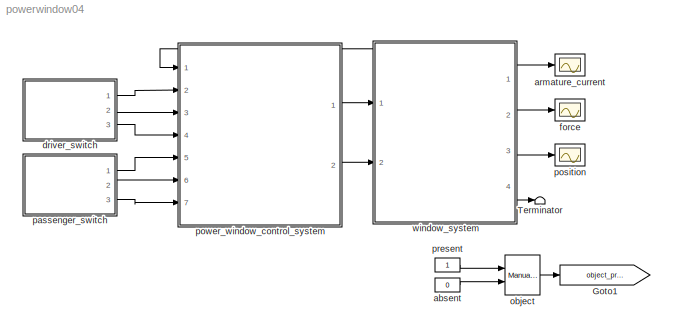
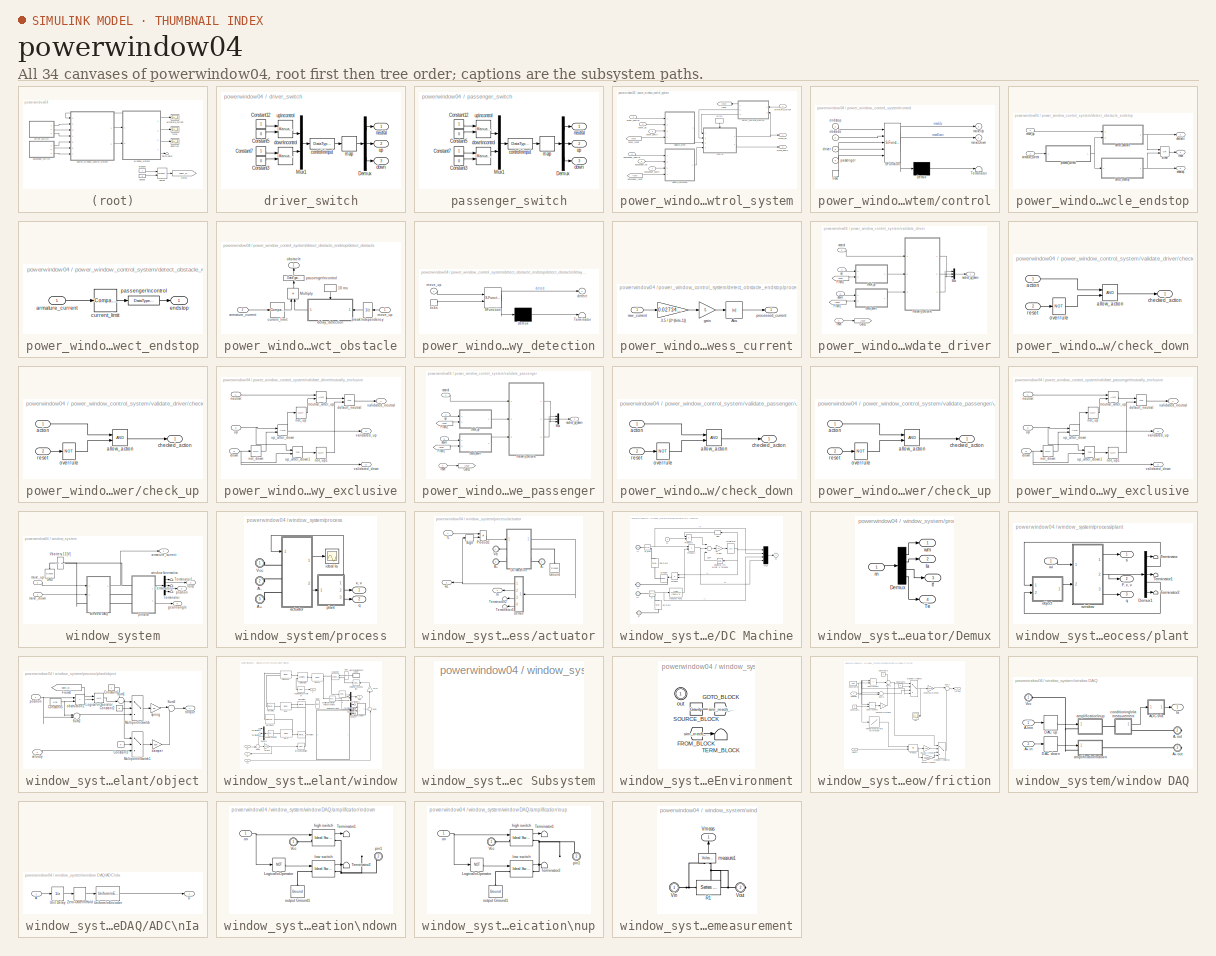
[diagram: thumbnail index - all 34 canvases of the model, root first then tree order]
MODEL powerwindow04
KIND model
CONFIG InitFcn = powericon('psbinitsys',bdroot);
BLOCK [Goto] Goto1
  DialogController = Simulink.DDGSource
  GotoTag = object_present
  TagVisibility = global
BLOCK [Terminator] Terminator
BLOCK [Constant] absent
  Value = 0
BLOCK [Scope] armature_current
  DataFormat = Array
  LimitDataPoints = off
  NumInputPorts = 1
  Ports = [1]
BLOCK [SubSystem] driver_switch
  MinAlgLoopOccurrences = off
  Ports = [0, 3]
  PropExecContextAcrossSSBoundary = on
  RTWSystemCode = Auto
  TreatAsAtomicUnit = off
BLOCK [Constant] driver_switch/Constant12
BLOCK [Constant] driver_switch/Constant3
  Value = 0
BLOCK [Constant] driver_switch/Constant5
  Value = 0
BLOCK [Constant] driver_switch/Constant7
BLOCK [Demux] driver_switch/Demux
  Outputs = 3
  Ports = [1, 3]
BLOCK [Mux] driver_switch/Mux1
  DisplayOption = bar
  Inputs = 2
  Ports = [2, 1]
BLOCK [DataTypeConversion] driver_switch/control\ninput
  OutDataTypeMode = boolean
BLOCK [Outport] driver_switch/down
  BusOutputAsStruct = off
  IconDisplay = Port number
  Port = 3
BLOCK [Reference] driver_switch/down\ncontrol  REF=simulink/Signal\nRouting/Manual Switch
  Ports = [2, 1]
  ShowPortLabels = on
  SourceBlock = simulink/Signal\nRouting/Manual Switch
  SourceType = Manual Switch
  action = 0
  sw = 0
BLOCK [CombinatorialLogic] driver_switch/map
  TruthTable = [1 0 0;0 0 1;0 1 0;1 0 0]
BLOCK [Outport] driver_switch/neutral
  BusOutputAsStruct = off
  IconDisplay = Port number
BLOCK [Outport] driver_switch/up
  BusOutputAsStruct = off
  IconDisplay = Port number
  Port = 2
BLOCK [Reference] driver_switch/up\ncontrol  REF=simulink/Signal\nRouting/Manual Switch
  Ports = [2, 1]
  ShowPortLabels = on
  SourceBlock = simulink/Signal\nRouting/Manual Switch
  SourceType = Manual Switch
  action = 0
  sw = 0
BLOCK [Scope] force
  DataFormat = Array
  LimitDataPoints = off
  NumInputPorts = 1
  Ports = [1]
BLOCK [Reference] object  REF=simulink/Signal\nRouting/Manual Switch
  Ports = [2, 1]
  ShowPortLabels = on
  SourceBlock = simulink/Signal\nRouting/Manual Switch
  SourceType = Manual Switch
  action = 0
  sw = 1
BLOCK [SubSystem] passenger_switch
  MinAlgLoopOccurrences = off
  Ports = [0, 3]
  PropExecContextAcrossSSBoundary = on
  RTWSystemCode = Auto
  TreatAsAtomicUnit = off
BLOCK [Constant] passenger_switch/Constant12
BLOCK [Constant] passenger_switch/Constant3
  Value = 0
BLOCK [Constant] passenger_switch/Constant5
  Value = 0
BLOCK [Constant] passenger_switch/Constant7
BLOCK [Demux] passenger_switch/Demux
  Outputs = 3
  Ports = [1, 3]
BLOCK [Mux] passenger_switch/Mux1
  DisplayOption = bar
  Inputs = 2
  Ports = [2, 1]
BLOCK [DataTypeConversion] passenger_switch/control\ninput
  OutDataTypeMode = boolean
BLOCK [Outport] passenger_switch/down
  BusOutputAsStruct = off
  IconDisplay = Port number
  Port = 3
BLOCK [Reference] passenger_switch/down\ncontrol  REF=simulink/Signal\nRouting/Manual Switch
  Ports = [2, 1]
  ShowPortLabels = on
  SourceBlock = simulink/Signal\nRouting/Manual Switch
  SourceType = Manual Switch
  action = 0
  sw = 0
BLOCK [CombinatorialLogic] passenger_switch/map
  TruthTable = [1 0 0;0 0 1;0 1 0;1 0 0]
BLOCK [Outport] passenger_switch/neutral
  BusOutputAsStruct = off
  IconDisplay = Port number
BLOCK [Outport] passenger_switch/up
  BusOutputAsStruct = off
  IconDisplay = Port number
  Port = 2
BLOCK [Reference] passenger_switch/up\ncontrol  REF=simulink/Signal\nRouting/Manual Switch
  Ports = [2, 1]
  ShowPortLabels = on
  SourceBlock = simulink/Signal\nRouting/Manual Switch
  SourceType = Manual Switch
  action = 0
  sw = 0
BLOCK [Scope] position
  DataFormat = Array
  LimitDataPoints = off
  NumInputPorts = 1
  Ports = [1]
  YMax = 0.5
  YMin = -0.05
BLOCK [SubSystem] power_window_control_system
  MinAlgLoopOccurrences = off
  Ports = [7, 2]
  PropExecContextAcrossSSBoundary = on
  RTWSystemCode = Auto
  TreatAsAtomicUnit = off
BLOCK [DiscretePulseGenerator] power_window_control_system/10 ms
  Ports = [0, 1]
  SampleTime = 10e-3
BLOCK [Inport] power_window_control_system/armature_current
  IconDisplay = Port number
  LatchInput = off
  Port = 1
BLOCK [SubSystem] power_window_control_system/control
  MaskDescription = Stateflow diagram
  MaskDisplay = plot(sf('Private','sfblk','xIcon'),sf('Private','sfblk','yIcon'));text(0.5,0,sf('Private', 'sfblk', 'tIcon'),'HorizontalAl','Center','VerticalAl','Bottom');
  MaskIconFrame = off
  MaskIconOpaque = off
  MaskIconRotate = none
  MaskIconUnits = autoscale
  MaskSelfModifiable = on
  MaskType = Stateflow
  MinAlgLoopOccurrences = off
  Ports = [4, 2, 0, 1]
  PropExecContextAcrossSSBoundary = on
  RTWSystemCode = Auto
  TreatAsAtomicUnit = on
BLOCK [Demux] power_window_control_system/control/ Demux 
  Outputs = 1
  Ports = [1, 1]
BLOCK [S-Function] power_window_control_system/control/ SFunction 
  FunctionName = sf_sfun
  PortCounts = [5 3]
  Ports = [5, 3]
  Tag = Stateflow S-Function powerwindow04 2
BLOCK [Terminator] power_window_control_system/control/ Terminator 
BLOCK [Inport] power_window_control_system/control/driver
  IconDisplay = Port number
  LatchInput = off
  Port = 3
BLOCK [Inport] power_window_control_system/control/endstop
  IconDisplay = Port number
  LatchInput = off
  Port = 1
BLOCK [Outport] power_window_control_system/control/moveDown
  BusOutputAsStruct = off
  IconDisplay = Port number
  Port = 2
BLOCK [Outport] power_window_control_system/control/moveUp
  BusOutputAsStruct = off
  IconDisplay = Port number
BLOCK [Inport] power_window_control_system/control/obstacle
  IconDisplay = Port number
  LatchInput = off
  Port = 2
BLOCK [Inport] power_window_control_system/control/passenger
  IconDisplay = Port number
  LatchInput = off
  Port = 4
BLOCK [TriggerPort] power_window_control_system/control/ticks
  Ports = [0, 1]
  ShowOutputPort = on
  TriggerType = either
BLOCK [SubSystem] power_window_control_system/detect_obstacle_endstop
  MinAlgLoopOccurrences = off
  Ports = [2, 3]
  PropExecContextAcrossSSBoundary = on
  RTWSystemCode = Auto
  TreatAsAtomicUnit = off
BLOCK [Inport] power_window_control_system/detect_obstacle_endstop/armature_current
  IconDisplay = Port number
  LatchInput = off
  Port = 1
BLOCK [SubSystem] power_window_control_system/detect_obstacle_endstop/detect_endstop
  MinAlgLoopOccurrences = off
  Ports = [1, 1]
  PropExecContextAcrossSSBoundary = on
  RTWSystemCode = Auto
  TreatAsAtomicUnit = off
BLOCK [Inport] power_window_control_system/detect_obstacle_endstop/detect_endstop/armature_current
  IconDisplay = Port number
  LatchInput = off
  Port = 1
BLOCK [Reference] power_window_control_system/detect_obstacle_endstop/detect_endstop/current_limit  REF=simulink/Logic and Bit\nOperations/Compare\nTo Constant
  LogicOutDataTypeMode = uint8
  Ports = [1, 1]
  ShowPortLabels = on
  SourceBlock = simulink/Logic and Bit\nOperations/Compare\nTo Constant
  SourceType = Compare To Constant
  const = 15
  relop = >
BLOCK [Outport] power_window_control_system/detect_obstacle_endstop/detect_endstop/endstop
  BusOutputAsStruct = off
  IconDisplay = Port number
BLOCK [DataTypeConversion] power_window_control_system/detect_obstacle_endstop/detect_endstop/passenger\ncontrol
  OutDataTypeMode = boolean
BLOCK [SubSystem] power_window_control_system/detect_obstacle_endstop/detect_obstacle
  MinAlgLoopOccurrences = off
  Ports = [2, 1]
  PropExecContextAcrossSSBoundary = on
  RTWSystemCode = Auto
  TreatAsAtomicUnit = off
BLOCK [DiscretePulseGenerator] power_window_control_system/detect_obstacle_endstop/detect_obstacle/10 ms
  Ports = [0, 1]
  SampleTime = 10e-3
BLOCK [Product] power_window_control_system/detect_obstacle_endstop/detect_obstacle/Multiply
  InputSameDT = off
  Inputs = **
  OutDataType = sfix(8)
  OutScaling = 2^-5
  Ports = [2, 1]
  RndMeth = Floor
  SaturateOnIntegerOverflow = off
BLOCK [Inport] power_window_control_system/detect_obstacle_endstop/detect_obstacle/armature_current
  IconDisplay = Port number
  LatchInput = off
  Port = 2
BLOCK [UnitDelay] power_window_control_system/detect_obstacle_endstop/detect_obstacle/break\ndependency
  SampleTime = 0.01
BLOCK [Reference] power_window_control_system/detect_obstacle_endstop/detect_obstacle/current_limit  REF=simulink/Logic and Bit\nOperations/Compare\nTo Constant
  LogicOutDataTypeMode = uint8
  Ports = [1, 1]
  ShowPortLabels = on
  SourceBlock = simulink/Logic and Bit\nOperations/Compare\nTo Constant
  SourceType = Compare To Constant
  const = 1.1
  relop = >
BLOCK [SubSystem] power_window_control_system/detect_obstacle_endstop/detect_obstacle/delay_detection
  MaskDescription = Stateflow diagram
  MaskDisplay = plot(sf('Private','sfblk','xIcon'),sf('Private','sfblk','yIcon'));text(0.5,0,sf('Private', 'sfblk', 'tIcon'),'HorizontalAl','Center','VerticalAl','Bottom');
  MaskIconFrame = off
  MaskIconOpaque = off
  MaskIconRotate = none
  MaskIconUnits = autoscale
  MaskSelfModifiable = on
  MaskType = Stateflow
  MinAlgLoopOccurrences = off
  Ports = [1, 1, 0, 1]
  PropExecContextAcrossSSBoundary = on
  RTWSystemCode = Auto
  TreatAsAtomicUnit = on
BLOCK [Demux] power_window_control_system/detect_obstacle_endstop/detect_obstacle/delay_detection/ Demux 
  Outputs = 1
  Ports = [1, 1]
BLOCK [S-Function] power_window_control_system/detect_obstacle_endstop/detect_obstacle/delay_detection/ SFunction 
  FunctionName = sf_sfun
  PortCounts = [2 2]
  Ports = [2, 2]
  Tag = Stateflow S-Function powerwindow04 4
BLOCK [Terminator] power_window_control_system/detect_obstacle_endstop/detect_obstacle/delay_detection/ Terminator 
BLOCK [Outport] power_window_control_system/detect_obstacle_endstop/detect_obstacle/delay_detection/detect
  BusOutputAsStruct = off
  IconDisplay = Port number
BLOCK [Inport] power_window_control_system/detect_obstacle_endstop/detect_obstacle/delay_detection/move_up
  IconDisplay = Port number
  LatchInput = off
  Port = 1
BLOCK [TriggerPort] power_window_control_system/detect_obstacle_endstop/detect_obstacle/delay_detection/ticks
  Ports = [0, 1]
  ShowOutputPort = on
  TriggerType = either
BLOCK [Inport] power_window_control_system/detect_obstacle_endstop/detect_obstacle/move_up
  IconDisplay = Port number
  LatchInput = off
  Port = 1
BLOCK [Outport] power_window_control_system/detect_obstacle_endstop/detect_obstacle/obstacle
  BusOutputAsStruct = off
  IconDisplay = Port number
BLOCK [DataTypeConversion] power_window_control_system/detect_obstacle_endstop/detect_obstacle/passenger\ncontrol
  OutDataTypeMode = boolean
BLOCK [Logic] power_window_control_system/detect_obstacle_endstop/either
  Operator = OR
  Ports = [2, 1]
BLOCK [Outport] power_window_control_system/detect_obstacle_endstop/endstop
  BusOutputAsStruct = off
  IconDisplay = Port number
  Port = 3
BLOCK [Inport] power_window_control_system/detect_obstacle_endstop/move_up
  IconDisplay = Port number
  LatchInput = off
  Port = 2
BLOCK [Outport] power_window_control_system/detect_obstacle_endstop/obstacle
  BusOutputAsStruct = off
  IconDisplay = Port number
  Port = 2
BLOCK [SubSystem] power_window_control_system/detect_obstacle_endstop/process_current
  MinAlgLoopOccurrences = off
  Ports = [1, 1]
  PropExecContextAcrossSSBoundary = on
  RTWSystemCode = Auto
  TreatAsAtomicUnit = off
BLOCK [Gain] power_window_control_system/detect_obstacle_endstop/process_current/3.5 // (2^(bits-1))
  Gain = 0.02734375
  OutDataTypeMode = Specify via dialog
  OutScaling = 2^-6
  ParameterDataType = sfix( 8 )
  ParameterDataTypeMode = Inherit via internal rule
  ParameterScaling = 2^-12
  SaturateOnIntegerOverflow = off
BLOCK [Abs] power_window_control_system/detect_obstacle_endstop/process_current/Abs
  SaturateOnIntegerOverflow = off
BLOCK [Gain] power_window_control_system/detect_obstacle_endstop/process_current/gain
  Gain = 5
  OutDataTypeMode = Specify via dialog
  OutScaling = 2^-5
  ParameterDataType = sfix( 8 )
  ParameterDataTypeMode = Inherit via internal rule
  ParameterScaling = 2^-4
  SaturateOnIntegerOverflow = off
BLOCK [Outport] power_window_control_system/detect_obstacle_endstop/process_current/processed_current
  BusOutputAsStruct = off
  IconDisplay = Port number
BLOCK [Inport] power_window_control_system/detect_obstacle_endstop/process_current/raw_current
  IconDisplay = Port number
  LatchInput = off
  Port = 1
BLOCK [Outport] power_window_control_system/detect_obstacle_endstop/reset
  BusOutputAsStruct = off
  IconDisplay = Port number
BLOCK [Inport] power_window_control_system/driver_down
  IconDisplay = Port number
  LatchInput = off
  Port = 4
BLOCK [Inport] power_window_control_system/driver_neutral
  IconDisplay = Port number
  LatchInput = off
  Port = 2
BLOCK [From] power_window_control_system/driver_reset
  CloseFcn = tagdialog Close
  DialogController = Simulink.DDGSource
  GotoTag = reset
BLOCK [Inport] power_window_control_system/driver_up
  IconDisplay = Port number
  LatchInput = off
  Port = 3
BLOCK [Outport] power_window_control_system/move_down
  BusOutputAsStruct = off
  IconDisplay = Port number
  Port = 2
BLOCK [Outport] power_window_control_system/move_up
  BusOutputAsStruct = off
  IconDisplay = Port number
BLOCK [Inport] power_window_control_system/passenger_down
  IconDisplay = Port number
  LatchInput = off
  Port = 7
BLOCK [Inport] power_window_control_system/passenger_neutral
  IconDisplay = Port number
  LatchInput = off
  Port = 5
BLOCK [From] power_window_control_system/passenger_reset
  CloseFcn = tagdialog Close
  DialogController = Simulink.DDGSource
  GotoTag = reset
BLOCK [Inport] power_window_control_system/passenger_up
  IconDisplay = Port number
  LatchInput = off
  Port = 6
BLOCK [Goto] power_window_control_system/reset
  DialogController = Simulink.DDGSource
  GotoTag = reset
  TagVisibility = local
BLOCK [SubSystem] power_window_control_system/validate_driver
  MinAlgLoopOccurrences = off
  Ports = [4, 1]
  PropExecContextAcrossSSBoundary = on
  RTWSystemCode = Auto
  TreatAsAtomicUnit = off
BLOCK [From] power_window_control_system/validate_driver/From1
  CloseFcn = tagdialog Close
  DialogController = Simulink.DDGSource
  GotoTag = reset
BLOCK [From] power_window_control_system/validate_driver/From2
  CloseFcn = tagdialog Close
  DialogController = Simulink.DDGSource
  GotoTag = reset
BLOCK [Goto] power_window_control_system/validate_driver/Goto1
  DialogController = Simulink.DDGSource
  GotoTag = reset
  TagVisibility = local
BLOCK [Mux] power_window_control_system/validate_driver/Mux
  DisplayOption = bar
  Inputs = 3
  Ports = [3, 1]
BLOCK [SubSystem] power_window_control_system/validate_driver/check_down
  MinAlgLoopOccurrences = off
  Ports = [2, 1]
  PropExecContextAcrossSSBoundary = on
  RTWSystemCode = Auto
  TreatAsAtomicUnit = off
BLOCK [Inport] power_window_control_system/validate_driver/check_down/action
  IconDisplay = Port number
  LatchInput = off
  Port = 1
BLOCK [Logic] power_window_control_system/validate_driver/check_down/allow_action
  Ports = [2, 1]
BLOCK [Outport] power_window_control_system/validate_driver/check_down/checked_action
  BusOutputAsStruct = off
  IconDisplay = Port number
BLOCK [Logic] power_window_control_system/validate_driver/check_down/overrule
  Operator = NOT
  Ports = [1, 1]
BLOCK [Inport] power_window_control_system/validate_driver/check_down/reset
  IconDisplay = Port number
  LatchInput = off
  Port = 2
BLOCK [SubSystem] power_window_control_system/validate_driver/check_up
  MinAlgLoopOccurrences = off
  Ports = [2, 1]
  PropExecContextAcrossSSBoundary = on
  RTWSystemCode = Auto
  TreatAsAtomicUnit = off
BLOCK [Inport] power_window_control_system/validate_driver/check_up/action
  IconDisplay = Port number
  LatchInput = off
  Port = 1
BLOCK [Logic] power_window_control_system/validate_driver/check_up/allow_action
  Ports = [2, 1]
BLOCK [Outport] power_window_control_system/validate_driver/check_up/checked_action
  BusOutputAsStruct = off
  IconDisplay = Port number
BLOCK [Logic] power_window_control_system/validate_driver/check_up/overrule
  Operator = NOT
  Ports = [1, 1]
BLOCK [Inport] power_window_control_system/validate_driver/check_up/reset
  IconDisplay = Port number
  LatchInput = off
  Port = 2
BLOCK [Inport] power_window_control_system/validate_driver/down
  IconDisplay = Port number
  LatchInput = off
  Port = 3
BLOCK [SubSystem] power_window_control_system/validate_driver/mutually_exclusive
  MinAlgLoopOccurrences = off
  Ports = [3, 3]
  PropExecContextAcrossSSBoundary = on
  RTWSystemCode = Auto
  TreatAsAtomicUnit = off
BLOCK [Logic] power_window_control_system/validate_driver/mutually_exclusive/default_neutral
  Operator = OR
  Ports = [2, 1]
BLOCK [Inport] power_window_control_system/validate_driver/mutually_exclusive/down
  IconDisplay = Port number
  LatchInput = off
  Port = 3
BLOCK [Inport] power_window_control_system/validate_driver/mutually_exclusive/neutral
  IconDisplay = Port number
  LatchInput = off
  Port = 1
BLOCK [Logic] power_window_control_system/validate_driver/mutually_exclusive/neutral_after_up
  Ports = [2, 1]
BLOCK [Logic] power_window_control_system/validate_driver/mutually_exclusive/not_down
  Operator = NOT
  Ports = [1, 1]
BLOCK [Logic] power_window_control_system/validate_driver/mutually_exclusive/not_up
  Operator = NOT
  Ports = [1, 1]
BLOCK [Logic] power_window_control_system/validate_driver/mutually_exclusive/not_up1
  Operator = NOT
  Ports = [1, 1]
BLOCK [Inport] power_window_control_system/validate_driver/mutually_exclusive/up
  IconDisplay = Port number
  LatchInput = off
  Port = 2
BLOCK [Logic] power_window_control_system/validate_driver/mutually_exclusive/up_after_down
  Ports = [2, 1]
BLOCK [Logic] power_window_control_system/validate_driver/mutually_exclusive/up_after_down1
  Operator = OR
  Ports = [2, 1]
BLOCK [Outport] power_window_control_system/validate_driver/mutually_exclusive/validated_down
  BusOutputAsStruct = off
  IconDisplay = Port number
  Port = 3
BLOCK [Outport] power_window_control_system/validate_driver/mutually_exclusive/validated_neutral
  BusOutputAsStruct = off
  IconDisplay = Port number
BLOCK [Outport] power_window_control_system/validate_driver/mutually_exclusive/validated_up
  BusOutputAsStruct = off
  IconDisplay = Port number
  Port = 2
BLOCK [Inport] power_window_control_system/validate_driver/neutral
  IconDisplay = Port number
  LatchInput = off
  Port = 1
BLOCK [Outport] power_window_control_system/validate_driver/neutral_up_down
  BusOutputAsStruct = off
  IconDisplay = Port number
BLOCK [Inport] power_window_control_system/validate_driver/reset
  IconDisplay = Port number
  LatchInput = off
  Port = 4
BLOCK [Inport] power_window_control_system/validate_driver/up
  IconDisplay = Port number
  LatchInput = off
  Port = 2
BLOCK [SubSystem] power_window_control_system/validate_passenger
  MinAlgLoopOccurrences = off
  Ports = [4, 1]
  PropExecContextAcrossSSBoundary = on
  RTWSystemCode = Auto
  TreatAsAtomicUnit = off
BLOCK [From] power_window_control_system/validate_passenger/From1
  CloseFcn = tagdialog Close
  DialogController = Simulink.DDGSource
  GotoTag = reset
BLOCK [From] power_window_control_system/validate_passenger/From2
  CloseFcn = tagdialog Close
  DialogController = Simulink.DDGSource
  GotoTag = reset
BLOCK [Goto] power_window_control_system/validate_passenger/Goto1
  DialogController = Simulink.DDGSource
  GotoTag = reset
  TagVisibility = local
BLOCK [Mux] power_window_control_system/validate_passenger/Mux
  DisplayOption = bar
  Inputs = 3
  Ports = [3, 1]
BLOCK [SubSystem] power_window_control_system/validate_passenger/check_down
  MinAlgLoopOccurrences = off
  Ports = [2, 1]
  PropExecContextAcrossSSBoundary = on
  RTWSystemCode = Auto
  TreatAsAtomicUnit = off
BLOCK [Inport] power_window_control_system/validate_passenger/check_down/action
  IconDisplay = Port number
  LatchInput = off
  Port = 1
BLOCK [Logic] power_window_control_system/validate_passenger/check_down/allow_action
  Ports = [2, 1]
BLOCK [Outport] power_window_control_system/validate_passenger/check_down/checked_action
  BusOutputAsStruct = off
  IconDisplay = Port number
BLOCK [Logic] power_window_control_system/validate_passenger/check_down/overrule
  Operator = NOT
  Ports = [1, 1]
BLOCK [Inport] power_window_control_system/validate_passenger/check_down/reset
  IconDisplay = Port number
  LatchInput = off
  Port = 2
BLOCK [SubSystem] power_window_control_system/validate_passenger/check_up
  MinAlgLoopOccurrences = off
  Ports = [2, 1]
  PropExecContextAcrossSSBoundary = on
  RTWSystemCode = Auto
  TreatAsAtomicUnit = off
BLOCK [Inport] power_window_control_system/validate_passenger/check_up/action
  IconDisplay = Port number
  LatchInput = off
  Port = 1
BLOCK [Logic] power_window_control_system/validate_passenger/check_up/allow_action
  Ports = [2, 1]
BLOCK [Outport] power_window_control_system/validate_passenger/check_up/checked_action
  BusOutputAsStruct = off
  IconDisplay = Port number
BLOCK [Logic] power_window_control_system/validate_passenger/check_up/overrule
  Operator = NOT
  Ports = [1, 1]
BLOCK [Inport] power_window_control_system/validate_passenger/check_up/reset
  IconDisplay = Port number
  LatchInput = off
  Port = 2
BLOCK [Inport] power_window_control_system/validate_passenger/down
  IconDisplay = Port number
  LatchInput = off
  Port = 3
BLOCK [SubSystem] power_window_control_system/validate_passenger/mutually_exclusive
  MinAlgLoopOccurrences = off
  Ports = [3, 3]
  PropExecContextAcrossSSBoundary = on
  RTWSystemCode = Auto
  TreatAsAtomicUnit = off
BLOCK [Logic] power_window_control_system/validate_passenger/mutually_exclusive/default_neutral
  Operator = OR
  Ports = [2, 1]
BLOCK [Inport] power_window_control_system/validate_passenger/mutually_exclusive/down
  IconDisplay = Port number
  LatchInput = off
  Port = 3
BLOCK [Inport] power_window_control_system/validate_passenger/mutually_exclusive/neutral
  IconDisplay = Port number
  LatchInput = off
  Port = 1
BLOCK [Logic] power_window_control_system/validate_passenger/mutually_exclusive/neutral_after_up
  Ports = [2, 1]
BLOCK [Logic] power_window_control_system/validate_passenger/mutually_exclusive/not_down
  Operator = NOT
  Ports = [1, 1]
BLOCK [Logic] power_window_control_system/validate_passenger/mutually_exclusive/not_up
  Operator = NOT
  Ports = [1, 1]
BLOCK [Logic] power_window_control_system/validate_passenger/mutually_exclusive/not_up1
  Operator = NOT
  Ports = [1, 1]
BLOCK [Inport] power_window_control_system/validate_passenger/mutually_exclusive/up
  IconDisplay = Port number
  LatchInput = off
  Port = 2
BLOCK [Logic] power_window_control_system/validate_passenger/mutually_exclusive/up_after_down
  Ports = [2, 1]
BLOCK [Logic] power_window_control_system/validate_passenger/mutually_exclusive/up_after_down1
  Operator = OR
  Ports = [2, 1]
BLOCK [Outport] power_window_control_system/validate_passenger/mutually_exclusive/validated_down
  BusOutputAsStruct = off
  IconDisplay = Port number
  Port = 3
BLOCK [Outport] power_window_control_system/validate_passenger/mutually_exclusive/validated_neutral
  BusOutputAsStruct = off
  IconDisplay = Port number
BLOCK [Outport] power_window_control_system/validate_passenger/mutually_exclusive/validated_up
  BusOutputAsStruct = off
  IconDisplay = Port number
  Port = 2
BLOCK [Inport] power_window_control_system/validate_passenger/neutral
  IconDisplay = Port number
  LatchInput = off
  Port = 1
BLOCK [Outport] power_window_control_system/validate_passenger/neutral_up_down
  BusOutputAsStruct = off
  IconDisplay = Port number
BLOCK [Inport] power_window_control_system/validate_passenger/reset
  IconDisplay = Port number
  LatchInput = off
  Port = 4
BLOCK [Inport] power_window_control_system/validate_passenger/up
  IconDisplay = Port number
  LatchInput = off
  Port = 2
BLOCK [Constant] present
BLOCK [SubSystem] window_system
  AncestorBlock = powerwindowlibphys/detailed_window_system
  MinAlgLoopOccurrences = off
  Ports = [2, 4]
  PropExecContextAcrossSSBoundary = on
  RTWSystemCode = Auto
  TreatAsAtomicUnit = off
BLOCK [Reference] window_system/GND  REF=powerlib/Elements/Ground
  LConnTagsString = a
  LeftPortType = p1
  PhysicalDomain = powersysdomain
  Ports = [0, 0, 0, 0, 0, 1]
  RightPortType = p1
  SourceBlock = powerlib/Elements/Ground
  SourceType = Ground
  SubClassName = unknown
BLOCK [Terminator] window_system/Terminator
BLOCK [Terminator] window_system/Terminator1
BLOCK [Terminator] window_system/Terminator2
BLOCK [Reference] window_system/Vbattery 12[V]  REF=powerlib/Electrical\nSources/DC Voltage Source
  Amplitude = 12
  Measurements = None
  Ports = [0, 0, 0, 0, 0, 1, 1]
  ShowPortLabels = on
  SourceBlock = powerlib/Electrical\nSources/DC Voltage Source
  SourceType = DC Voltage Source
BLOCK [Outport] window_system/armature_current
  BusOutputAsStruct = off
  IconDisplay = Port number
BLOCK [Outport] window_system/force
  BusOutputAsStruct = off
  IconDisplay = Port number
  Port = 2
BLOCK [Outport] window_system/gear\nangle
  BusOutputAsStruct = off
  IconDisplay = Port number
  Port = 4
BLOCK [Inport] window_system/move_down
  IconDisplay = Port number
  LatchInput = off
  Port = 2
BLOCK [Inport] window_system/move_up
  IconDisplay = Port number
  LatchInput = off
  Port = 1
BLOCK [Outport] window_system/position
  BusOutputAsStruct = off
  IconDisplay = Port number
  Port = 3
BLOCK [SubSystem] window_system/process
  AncestorBlock = powerwindowlibphys/process
  MinAlgLoopOccurrences = off
  Ports = [0, 2, 0, 0, 0, 3]
  PropExecContextAcrossSSBoundary = on
  RTWSystemCode = Auto
  TreatAsAtomicUnit = off
BLOCK [PMIOPort] window_system/process/A+
  Port = 3
  Side = Left
BLOCK [PMIOPort] window_system/process/A-
  Port = 2
  Side = Left
BLOCK [PMIOPort] window_system/process/Vcc
  Port = 1
  Side = Left
BLOCK [SubSystem] window_system/process/actuator
  MinAlgLoopOccurrences = off
  Ports = [1, 2, 0, 0, 0, 3]
  PropExecContextAcrossSSBoundary = on
  RTWSystemCode = Auto
  TreatAsAtomicUnit = off
BLOCK [PMIOPort] window_system/process/actuator/A+
  Port = 3
  Side = Left
BLOCK [PMIOPort] window_system/process/actuator/A-
  Port = 2
  Side = Left
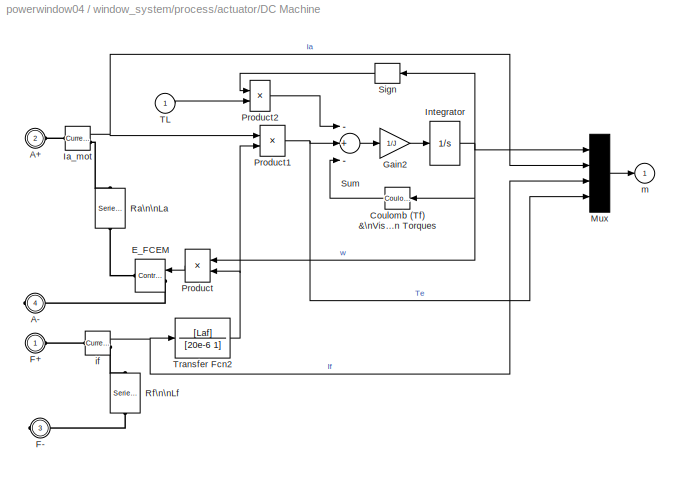
BLOCK [SubSystem] window_system/process/actuator/DC Machine
  MaskCallbackString = |||||||
  MaskDescription = This block implements a separately excited DC machine. Access is provided  to the field connections so that the machine can be used as a shunt-connected or a series-connected  DC machine. \n\nInput 1 and output 1 : positive and negative armature terminals\nInput 2 and output 2 : positive and negative field terminals\nInput 3    : Load torque \nOutput 3 : Simulink measurement output [ w Ia If Te ]
  MaskDisplay = plot(-80,-80,80,80,[0,9,18,24,29,30,29,24,18,9,0,-9,-18,-24,-29,-30,-29,-24,-18,-9,0],[30,29,24,18,9,0,-9,-18,-24,-29,-30,-29,-24,-18,-9,0,9,18,24,29,30],[-29,-35,-35,-29],[-8,-8,8,8],[29,35,35,29],[-8,-8,8,8],[-35,-55],[0,0],[35,55],[0,0],[-78,-50,-50,-49,-45,-39,-33,-26,-21,-18,-17,-19,-22,-22,-26,-27,-25,-22,-16,-9,-3,2,6,6,4,1,1,-3,-4,-2,2,7,14,20,26,29,30,28,24,24,21,20,21,25,31,37,44,49,50,5...<+266ch>
  MaskEnableString = on,on,on,on,on,on,on,on
  MaskHelp = web(psbhelp)
  MaskIconFrame = on
  MaskIconOpaque = off
  MaskIconRotate = none
  MaskIconUnits = autoscale
  MaskInitialization = Ra=RLa(1); La=RLa(2);\nRf=RLf(1); Lf=RLf(2);\n\n\n\n\n\n
  MaskPromptString = Armature resistance and inductance [Ra (ohms) La (H) ]|Field resistance and inductance [Rf (ohms) Lf (H) ]|Field-armature mutual inductance Laf (H) :|Total inertia J (kg.m^2)|Viscous friction coefficient Bm (N.m.s)|Coulomb friction torque Tf (N.m)|Initial speed (rad/s) :|Output type
  MaskStyleString = edit,edit,edit,edit,edit,edit,edit,edit
  MaskTabNameString = ,,,,,,,
  MaskToolTipString = on,on,on,on,on,on,on,on
  MaskTunableValueString = on,on,on,on,on,on,on,on
  MaskType = DC machine
  MaskValueString = [0.15  0.036]|[1.5 3]|1|0.085|5|0|0|110
  MaskVarAliasString = ,,,,,,,
  MaskVariables = RLa=@1;RLf=@2;Laf=@3;J=@4;Bm=@5;Tf=@6;w0=@7;PSBOutputType=@8;
  MaskVisibilityString = on,on,on,on,on,on,on,off
  MinAlgLoopOccurrences = off
  Ports = [1, 1, 0, 0, 0, 2, 2]
  PropExecContextAcrossSSBoundary = on
  RTWSystemCode = Auto
  TreatAsAtomicUnit = off
BLOCK [PMIOPort] window_system/process/actuator/DC Machine/A+
  Port = 2
  Side = Left
BLOCK [PMIOPort] window_system/process/actuator/DC Machine/A-
  Port = 4
  Side = Right
BLOCK [Reference] window_system/process/actuator/DC Machine/Coulomb (Tf) &\nViscous ( Bm*w) \nFriction Torques  REF=simulink/Discontinuities/Coulomb &\nViscous Friction
  Ports = [1, 1]
  ShowPortLabels = on
  SourceBlock = simulink/Discontinuities/Coulomb &\nViscous Friction
  SourceType = Coulombic and Viscous Friction
  gain = Bm
  offset = Tf
BLOCK [Reference] window_system/process/actuator/DC Machine/E_FCEM  REF=powerlib/Electrical\nSources/Controlled Voltage Source
  Amplitude = 0
  Frequency = 0
  Initialize = on
  Measurements = None
  Phase = 0
  Ports = [1, 0, 0, 0, 0, 1, 1]
  ShowPortLabels = on
  SourceBlock = powerlib/Electrical\nSources/Controlled Voltage Source
  SourceType = AC
BLOCK [PMIOPort] window_system/process/actuator/DC Machine/F+
  Port = 1
  Side = Left
BLOCK [PMIOPort] window_system/process/actuator/DC Machine/F-
  Port = 3
  Side = Right
BLOCK [Gain] window_system/process/actuator/DC Machine/Gain2
  Gain = 1/J
BLOCK [Reference] window_system/process/actuator/DC Machine/Ia_mot  REF=powerlib/Measurements/Current Measurement
  OutputType = Magnitude
  PSBequivalent = 0
  PhasorSimulation = off
  Ports = [0, 1, 0, 0, 0, 1, 1]
  ShowPortLabels = on
  SourceBlock = powerlib/Measurements/Current Measurement
  SourceType = Current Measurement
BLOCK [Integrator] window_system/process/actuator/DC Machine/Integrator
  InitialCondition = w0
  Ports = [1, 1]
BLOCK [Mux] window_system/process/actuator/DC Machine/Mux
  Ports = [4, 1]
BLOCK [Product] window_system/process/actuator/DC Machine/Product
  Ports = [2, 1]
  RndMeth = Floor
BLOCK [Product] window_system/process/actuator/DC Machine/Product1
  Ports = [2, 1]
  RndMeth = Floor
BLOCK [Product] window_system/process/actuator/DC Machine/Product2
  Ports = [2, 1]
  RndMeth = Floor
BLOCK [Reference] window_system/process/actuator/DC Machine/Ra\n\nLa  REF=powerlib/Elements/Series RLC Branch
  Capacitance = inf
  Inductance = La
  LConnTagsString = __new0
  LeftPortType = p1
  Measurements = None
  PhysicalDomain = powersysdomain
  Ports = [0, 0, 0, 0, 0, 1, 1]
  RConnTagsString = __new0
  Resistance = Ra
  RightPortType = p1
  SourceBlock = powerlib/Elements/Series RLC Branch
  SourceType = Series RLC Branch
  SubClassName = unknown
BLOCK [Reference] window_system/process/actuator/DC Machine/Rf\n\nLf  REF=powerlib/Elements/Series RLC Branch
  Capacitance = inf
  Inductance = Lf
  LConnTagsString = __new0
  LeftPortType = p1
  Measurements = None
  PhysicalDomain = powersysdomain
  Ports = [0, 0, 0, 0, 0, 1, 1]
  RConnTagsString = __new0
  Resistance = Rf
  RightPortType = p1
  SourceBlock = powerlib/Elements/Series RLC Branch
  SourceType = Series RLC Branch
  SubClassName = unknown
BLOCK [Signum] window_system/process/actuator/DC Machine/Sign
BLOCK [Sum] window_system/process/actuator/DC Machine/Sum
  Inputs = -+-
  Ports = [3, 1]
BLOCK [Inport] window_system/process/actuator/DC Machine/TL
  IconDisplay = Port number
  LatchInput = off
  Port = 1
BLOCK [TransferFcn] window_system/process/actuator/DC Machine/Transfer Fcn2
  Denominator = [20e-6 1]
  Numerator = [Laf]
BLOCK [Reference] window_system/process/actuator/DC Machine/if  REF=powerlib/Measurements/Current Measurement
  OutputType = Magnitude
  PSBequivalent = 0
  PhasorSimulation = off
  Ports = [0, 1, 0, 0, 0, 1, 1]
  ShowPortLabels = on
  SourceBlock = powerlib/Measurements/Current Measurement
  SourceType = Current Measurement
BLOCK [Outport] window_system/process/actuator/DC Machine/m
  BusOutputAsStruct = off
  IconDisplay = Port number
  InitialOutput = 0
BLOCK [SubSystem] window_system/process/actuator/Demux
  MinAlgLoopOccurrences = off
  Ports = [1, 4]
  PropExecContextAcrossSSBoundary = on
  RTWSystemCode = Auto
  TreatAsAtomicUnit = off
BLOCK [Demux] window_system/process/actuator/Demux/Demux
  Ports = [1, 4]
BLOCK [Outport] window_system/process/actuator/Demux/Ia
  BusOutputAsStruct = off
  IconDisplay = Port number
  Port = 2
BLOCK [Outport] window_system/process/actuator/Demux/If
  BusOutputAsStruct = off
  IconDisplay = Port number
  Port = 3
BLOCK [Outport] window_system/process/actuator/Demux/Te
  BusOutputAsStruct = off
  IconDisplay = Port number
  Port = 4
BLOCK [Inport] window_system/process/actuator/Demux/m
  IconDisplay = Port number
  LatchInput = off
  Port = 1
BLOCK [Outport] window_system/process/actuator/Demux/wm
  BusOutputAsStruct = off
  IconDisplay = Port number
BLOCK [Reference] window_system/process/actuator/Ground  REF=powerlib/Elements/Ground
  LConnTagsString = a
  LeftPortType = p1
  PhysicalDomain = powersysdomain
  Ports = [0, 0, 0, 0, 0, 1]
  RightPortType = p1
  SourceBlock = powerlib/Elements/Ground
  SourceType = Ground
  SubClassName = unknown
BLOCK [Outport] window_system/process/actuator/Ia
  BusOutputAsStruct = off
  IconDisplay = Port number
BLOCK [Product] window_system/process/actuator/Product2
  Ports = [2, 1]
  RndMeth = Floor
BLOCK [Signum] window_system/process/actuator/Sign
BLOCK [Terminator] window_system/process/actuator/Terminator2
BLOCK [Terminator] window_system/process/actuator/Terminator3
BLOCK [PMIOPort] window_system/process/actuator/Vcc
  Port = 1
  Side = Left
BLOCK [Inport] window_system/process/actuator/tL
  IconDisplay = Port number
  LatchInput = off
  Port = 1
BLOCK [Outport] window_system/process/actuator/wL
  BusOutputAsStruct = off
  IconDisplay = Port number
  Port = 2
BLOCK [Scope] window_system/process/ideal Ia
  DataFormat = StructureWithTime
  NumInputPorts = 1
  Ports = [1]
  SaveName = ScopeData4
  YMax = 20
  YMin = -7.5
BLOCK [SubSystem] window_system/process/plant
  MinAlgLoopOccurrences = off
  Ports = [1, 3]
  PropExecContextAcrossSSBoundary = on
  RTWSystemCode = Auto
  TreatAsAtomicUnit = off
BLOCK [Demux] window_system/process/plant/Demux1
  Outputs = [4, 1, 2, 1, 1]
  Ports = [1, 5]
BLOCK [Outport] window_system/process/plant/F, x, v
  BusOutputAsStruct = off
  IconDisplay = Port number
  Port = 2
BLOCK [Terminator] window_system/process/plant/Terminator
BLOCK [Terminator] window_system/process/plant/Terminator1
BLOCK [Terminator] window_system/process/plant/Terminator2
BLOCK [SubSystem] window_system/process/plant/object
  MinAlgLoopOccurrences = off
  Ports = [2, 1]
  PropExecContextAcrossSSBoundary = on
  RTWSystemCode = Auto
  TreatAsAtomicUnit = off
BLOCK [Constant] window_system/process/plant/object/Constant1
BLOCK [Constant] window_system/process/plant/object/Constant2
  Value = 0
BLOCK [Constant] window_system/process/plant/object/Constant3
  Value = 0
BLOCK [Constant] window_system/process/plant/object/Constant5
  Value = 0.30
BLOCK [From] window_system/process/plant/object/From4
  CloseFcn = tagdialog Close
  DialogController = Simulink.DDGSource
  GotoTag = object_present
BLOCK [Logic] window_system/process/plant/object/Logical\nOperator
  Ports = [2, 1]
BLOCK [MultiPortSwitch] window_system/process/plant/object/Multiport\nSwitch
  Inputs = 2
  Ports = [3, 1]
  SaturateOnIntegerOverflow = off
BLOCK [MultiPortSwitch] window_system/process/plant/object/Multiport\nSwitch1
  Inputs = 2
  Ports = [3, 1]
  SaturateOnIntegerOverflow = off
BLOCK [Sum] window_system/process/plant/object/Sum1
  IconShape = round
  Inputs = ++|
  Ports = [2, 1]
BLOCK [Sum] window_system/process/plant/object/Sum2
  IconShape = round
  Inputs = |-+
  Ports = [2, 1]
BLOCK [Sum] window_system/process/plant/object/Sum3
  IconShape = round
  Inputs = |++
  Ports = [2, 1]
BLOCK [Gain] window_system/process/plant/object/damper
  Gain = 500
BLOCK [RelationalOperator] window_system/process/plant/object/obstruction1
  Operator = >
BLOCK [Inport] window_system/process/plant/object/position
  IconDisplay = Port number
  LatchInput = off
  Port = 1
BLOCK [Gain] window_system/process/plant/object/spring
  Gain = 50
BLOCK [Outport] window_system/process/plant/object/torque
  BusOutputAsStruct = off
  IconDisplay = Port number
BLOCK [Inport] window_system/process/plant/object/velocity
  IconDisplay = Port number
  LatchInput = off
  Port = 2
BLOCK [Outport] window_system/process/plant/q
  BusOutputAsStruct = off
  IconDisplay = Port number
  Port = 3
BLOCK [Outport] window_system/process/plant/ti
  BusOutputAsStruct = off
  IconDisplay = Port number
BLOCK [Inport] window_system/process/plant/wi
  IconDisplay = Port number
  LatchInput = off
  Port = 1
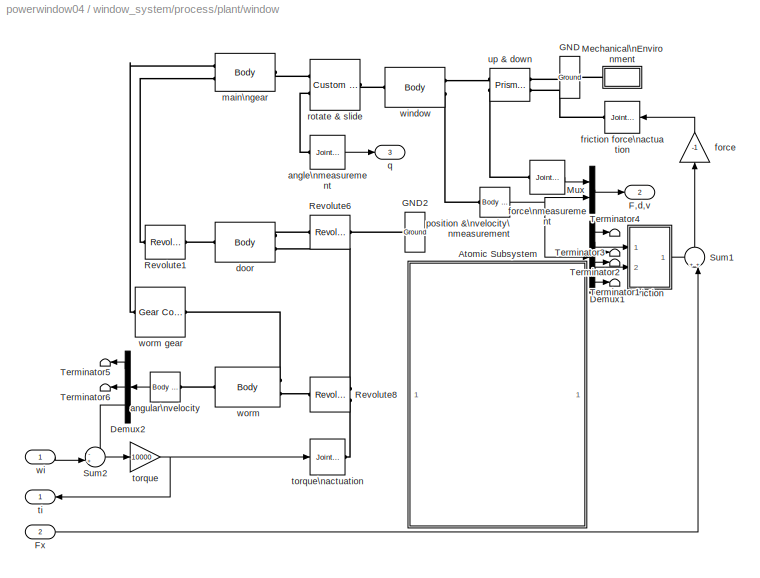
BLOCK [SubSystem] window_system/process/plant/window
  MinAlgLoopOccurrences = off
  Ports = [2, 3]
  PropExecContextAcrossSSBoundary = on
  RTWSystemCode = Auto
  TreatAsAtomicUnit = off
BLOCK [SubSystem] window_system/process/plant/window/Atomic Subsystem
  MaskDisplay = image(imread('pw_window1c.jpg'))
  MaskIconFrame = on
  MaskIconOpaque = on
  MaskIconRotate = none
  MaskIconUnits = autoscale
  MinAlgLoopOccurrences = off
  Ports = []
  PropExecContextAcrossSSBoundary = on
  RTWSystemCode = Auto
  TreatAsAtomicUnit = on
BLOCK [Demux] window_system/process/plant/window/Demux1
  Outputs = 6
  Ports = [1, 6]
BLOCK [Demux] window_system/process/plant/window/Demux2
  Outputs = 3
  Ports = [1, 3]
BLOCK [Outport] window_system/process/plant/window/F,d,v
  BusOutputAsStruct = off
  IconDisplay = Port number
  Port = 2
BLOCK [Inport] window_system/process/plant/window/Fx
  IconDisplay = Port number
  LatchInput = off
  Port = 2
BLOCK [Reference] window_system/process/plant/window/GND  REF=mblibv1/Bodies/Ground
  ClassName = Ground
  CoordPosition = [10 0 0]
  CoordPositionUnits = cm
  DialogClass = GroundBlock
  LeftPortType = env
  MachineId = [0 0]
  Opaque = on
  PhysicalDomain = Mechanical
  Ports = [0, 0, 0, 0, 0, 1, 1]
  RightPortType = workingframe
  ShowEnvPort = on
  ShowPortLabels = on
  SourceBlock = mblibv1/Bodies/Ground
  SourceType = msb
  StateVectorMgrId = -1
  UserData = DataTag0
  UserDataPersistent = on
BLOCK [Reference] window_system/process/plant/window/GND2  REF=mblibv1/Bodies/Ground
  ClassName = Ground
  CoordPosition = [0 0 0]
  CoordPositionUnits = m
  DialogClass = GroundBlock
  LeftPortType = env
  MachineId = [0 0]
  Opaque = on
  PhysicalDomain = Mechanical
  Ports = [0, 0, 0, 0, 0, 0, 1]
  RightPortType = workingframe
  ShowEnvPort = off
  ShowPortLabels = on
  SourceBlock = mblibv1/Bodies/Ground
  SourceType = msb
  StateVectorMgrId = -1
  UserData = DataTag1
  UserDataPersistent = on
BLOCK [SubSystem] window_system/process/plant/window/Mechanical\nEnvironment
  CopyFcn = mech_environment_block('CopyFcn', gcbh);
  DialogController = MECH.DialogSource
  MaskCallbackString = ||||||||||||||||||||
  MaskDescription = Defines the mechanical simulation environment for the machine to which the block is connected: gravity, dimensionality, analysis mode, constraint solver type, tolerances, linearization, and visualization.
  MaskDisplay = disp('Env')
  MaskEnableString = on,on,on,on,on,on,on,on,on,on,on,on,on,on,on,on,on,on,on,on,on
  MaskHelp = web(mech_help('environment'))
  MaskIconFrame = on
  MaskIconOpaque = on
  MaskIconRotate = none
  MaskIconUnits = pixels
  MaskInitialization = mech_environment_block('MaskInitialization', gcbh);
  MaskPromptString = PortType|PhysicalDomain|ClassName|DialogTemplateClass|SyncWhenCopied|Gravity|GravityUnits|GravityAsSignal|Dimensionality|AnalysisType|LinearAssemblyTolerance|LinearAssemblyToleranceUnits|AngularAssemblyTolerance|AngularAssemblyToleranceUnits|ConstraintSolverType|ConstraintRelTolerance|ConstraintAbsTolerance|UseRobustSingularityHandling|StatePerturbationType|PerturbationSize|VisualizeMachine
  MaskSelfModifiable = on
  MaskStyleString = edit,edit,edit,edit,edit,edit,popup(km/s^2|m/s^2|cm/s^2|mm/s^2|mi/s^2|ft/s^2|in/s^2),checkbox,popup(2D Only|3D Only|Auto-detect),popup(Forward dynamics|Inverse dynamics|Kinematics|Trimming),edit,popup(km|m|cm|mm|mi|ft|in),edit,popup(deg|rad),popup(Stabilizing|Tolerancing|Machine precision),edit,edit,checkbox,popup(Adaptive|Fixed),edit,checkbox
  MaskTabNameString = ,,,,,,,,,,,,,,,,,,,,
  MaskToolTipString = on,on,on,on,on,on,on,on,on,on,on,on,on,on,on,on,on,on,on,on,on
  MaskTunableValueString = on,on,on,on,on,on,on,on,on,on,on,on,on,on,on,on,on,on,on,on,on
  MaskType = Mechanical
  MaskValueString = env|Mechanical|Environment|MECH.MachineEnvironment|off|[0 0 0]|m/s^2|off|3D Only|Forward dynamics|1e-3|m|1e-3|rad|Stabilizing|1e-4|1e-4|off|Fixed|1e-5|on
  MaskVarAliasString = ,,,,,,,,,,,,,,,,,,,,
  MaskVariables = PortType=&1;PhysicalDomain=&2;ClassName=&3;DialogTemplateClass=&4;SyncWhenCopied=&5;Gravity=@6;GravityUnits=&7;GravityAsSignal=&8;Dimensionality=&9;AnalysisType=&10;LinearAssemblyTolerance=@11;LinearAssemblyToleranceUnits=&12;AngularAssemblyTolerance=@13;AngularAssemblyToleranceUnits=&14;ConstraintSolverType=&15;ConstraintRelTolerance=@16;ConstraintAbsTolerance=@17;UseRobustSingularityHandling=&18...<+69ch>
  MaskVisibilityString = off,off,off,off,off,on,on,on,on,on,on,on,on,on,on,on,on,on,on,on,on
  MinAlgLoopOccurrences = off
  Opaque = on
  Ports = [0, 0, 0, 0, 0, 0, 1]
  PropExecContextAcrossSSBoundary = on
  RTWSystemCode = Auto
  Tag = Factory ground
  TreatAsAtomicUnit = off
BLOCK [From] window_system/process/plant/window/Mechanical\nEnvironment/FROM_BLOCK
  DialogController = Simulink.DDGSource
  GotoTag = sim_mech_tag85b1e66e65c5d388
BLOCK [Goto] window_system/process/plant/window/Mechanical\nEnvironment/GOTO_BLOCK
  DialogController = Simulink.DDGSource
  GotoTag = sim_mech_tag85b1e66e65c5d388
  TagVisibility = global
BLOCK [Constant] window_system/process/plant/window/Mechanical\nEnvironment/SOURCE_BLOCK
  Value = Gravity
BLOCK [Terminator] window_system/process/plant/window/Mechanical\nEnvironment/TERM_BLOCK
BLOCK [PMIOPort] window_system/process/plant/window/Mechanical\nEnvironment/out
  Port = 1
  Side = Right
BLOCK [Mux] window_system/process/plant/window/Mux
  DisplayOption = bar
  Inputs = 2
  Ports = [2, 1]
BLOCK [Reference] window_system/process/plant/window/Revolute1  REF=mblibv1/Joints/Revolute
  ClassName = Joint
  CutJoint = off
  Description = Mechanical Blockset
  DialogClass = JointBlock
  LConnTagsString = __newl0
  LeftPortType = blob
  MarkAsCut = off
  NumSAPorts = 0
  PhysicalDomain = mechanical
  Ports = [0, 0, 0, 0, 0, 1, 1]
  PrimitiveProps = R1$WORLD$[0 0 1]$revolute
  Primitives = revolute
  RConnTagsString = __newr0
  RightPortType = blob
  SourceBlock = mblibv1/Joints/Revolute
  SourceType = msb
  SubClassName = Unknown
  Tag = Factory generic
BLOCK [Reference] window_system/process/plant/window/Revolute6  REF=mblibv1/Joints/Revolute
  ClassName = Joint
  CutJoint = off
  Description = Mechanical Blockset
  DialogClass = JointBlock
  LConnTagsString = __newl0
  LeftPortType = blob
  MarkAsCut = off
  NumSAPorts = 0
  PhysicalDomain = mechanical
  Ports = [0, 0, 0, 0, 0, 1, 1]
  PrimitiveProps = R1$WORLD$[1 0 0]$revolute
  Primitives = revolute
  RConnTagsString = __newr0
  RightPortType = blob
  SourceBlock = mblibv1/Joints/Revolute
  SourceType = msb
  SubClassName = Unknown
  Tag = Factory generic
BLOCK [Reference] window_system/process/plant/window/Revolute8  REF=mblibv1/Joints/Revolute
  ClassName = Joint
  CutJoint = off
  Description = Mechanical Blockset
  DialogClass = JointBlock
  LConnTagsString = __newl0|SA1
  LeftPortType = blob
  MarkAsCut = off
  NumSAPorts = 1
  PhysicalDomain = mechanical
  Ports = [0, 0, 0, 0, 0, 2, 1]
  PrimitiveProps = R1$WORLD$[0 0 1]$revolute
  Primitives = revolute
  RConnTagsString = __newr0
  RightPortType = blob
  SourceBlock = mblibv1/Joints/Revolute
  SourceType = msb
  SubClassName = Unknown
  Tag = Factory generic
BLOCK [Sum] window_system/process/plant/window/Sum1
  IconShape = round
  Inputs = ++|
  Ports = [2, 1]
BLOCK [Sum] window_system/process/plant/window/Sum2
  IconShape = round
  Inputs = -+|
  Ports = [2, 1]
BLOCK [Terminator] window_system/process/plant/window/Terminator1
BLOCK [Terminator] window_system/process/plant/window/Terminator2
BLOCK [Terminator] window_system/process/plant/window/Terminator3
BLOCK [Terminator] window_system/process/plant/window/Terminator4
BLOCK [Terminator] window_system/process/plant/window/Terminator5
BLOCK [Terminator] window_system/process/plant/window/Terminator6
BLOCK [Reference] window_system/process/plant/window/angle\nmeasurement  REF=mblibv1/Sensors & \nActuators/Joint Sensor
  Acceleration = off
  AccelerationUnits = m/s^2
  ActiveIO = off
  Angle = on
  AngleUnits = rad
  ArcAcceleration = off
  ArcAccelerationUnits = deg/s^2
  ArcVelocity = off
  ArcVelocityUnits = deg/s
  ClassName = JointSensor
  CoordPosition = off
  CoordPositionUnits = m
  Description = Mechanical Blockset
  DialogClass = MechanicalSensorBlock
  Force = off
  ForceUnits = N
  Muxed = on
  Opaque = on
  OutputVector = [ 1 ]
  PhysicalDomain = Mechanical
  PortType = blob
  Ports = [0, 1, 0, 0, 0, 1]
  Pose = off
  Primitive = R1
  Quaternion = on
  QuaternionDDT = off
  QuaternionDT = off
  QuaternionUnits = off
  ReactionForce = off
  ReactionForceUnits = N
  ReactionMoment = off
  ReactionMomentUnits = N-m
  ReactionReferenceFrame = Absolute (World)
  ReactionSensedSide = Base
  ReferenceFrame = Absolute (INERTIAL)
  ShowPortLabels = on
  SourceBlock = mblibv1/Sensors & \nActuators/Joint Sensor
  SourceType = msb
  Torque = off
  TorqueUnits = N-m
  Velocity = off
  VelocityUnits = m/s
  Width = 1
BLOCK [Reference] window_system/process/plant/window/angular\nvelocity  REF=mblibv1/Sensors & \nActuators/Body Sensor
  Acceleration = off
  AccelerationUnits = m/s^2
  ActiveIO = off
  Angle = on
  AngleUnits = deg
  ArcAcceleration = off
  ArcAccelerationUnits = deg/s^2
  ArcVelocity = on
  ArcVelocityUnits = rad/s
  ClassName = BodySensor
  CoordPosition = off
  CoordPositionUnits = m
  Description = Mechanical Blockset
  DialogClass = MechanicalSensorBlock
  Muxed = on
  Opaque = on
  OutputVector = [ 3 ]
  PhysicalDomain = Mechanical
  PortType = blob
  Ports = [0, 1, 0, 0, 0, 1]
  Pose = off
  Quaternion = on
  QuaternionDDT = off
  QuaternionDT = off
  QuaternionUnits = off
  ReferenceFrame = Absolute (World)
  ShowPortLabels = on
  SourceBlock = mblibv1/Sensors & \nActuators/Body Sensor
  SourceType = msb
  Velocity = off
  VelocityUnits = m/s
  Width = 3
BLOCK [Reference] window_system/process/plant/window/door  REF=mblibv1/Bodies/Body
  CG = Left$CG$[0 0 0]$WORLD$WORLD$cm$[0 0 0]$Euler X-Y-Z$deg$WORLD$true
  ClassName = Body
  Density = 1
  DensityUnits = kg/m^3
  DensityUse = false
  Description = Mechanical Blockset
  DialogClass = MechanicalBodyBlock
  Inertia = eye(3)
  InertiaUnits = kg*m^2
  LConnTagsString = CS3|CG
  LeftPortType = workingframe
  Mass = 1
  MassUnits = kg
  PhysicalDomain = mechanical
  Ports = [0, 0, 0, 0, 0, 2, 1]
  RConnTagsString = CS1
  RightPortType = workingframe
  Shape = Cylinder
  ShapeDims = [1 1]
  ShapeUnits = m
  ShapeUse = false
  SourceBlock = mblibv1/Bodies/Body
  SourceType = msb
  SubClassName = Unknown
  Tag = Factory generic
  WorkingFrames = Left$CS3$[0 0 0]$CG$CG$cm$[0 0 0]$Euler X-Y-Z$deg$WORLD$true#Right$CS1$[17 0 0]$CG$CG$cm$[0 0 0]$Euler X-Y-Z$deg$WORLD$true
BLOCK [Gain] window_system/process/plant/window/force
  Gain = -1
BLOCK [Reference] window_system/process/plant/window/force\nmeasurement  REF=mblibv1/Sensors & \nActuators/Joint Sensor
  Acceleration = off
  AccelerationUnits = m/s^2
  ActiveIO = off
  Angle = on
  AngleUnits = deg
  ArcAcceleration = off
  ArcAccelerationUnits = deg/s^2
  ArcVelocity = off
  ArcVelocityUnits = deg/s
  ClassName = JointSensor
  CoordPosition = off
  CoordPositionUnits = m
  Description = Mechanical Blockset
  DialogClass = MechanicalSensorBlock
  Force = off
  ForceUnits = N
  Muxed = on
  Opaque = on
  OutputVector = [ 3 ]
  PhysicalDomain = Mechanical
  PortType = blob
  Ports = [0, 1, 0, 0, 0, 1]
  Pose = off
  Primitive = P1
  Quaternion = on
  QuaternionDDT = off
  QuaternionDT = off
  QuaternionUnits = off
  ReactionForce = on
  ReactionForceUnits = N
  ReactionMoment = off
  ReactionMomentUnits = N-m
  ReactionReferenceFrame = Absolute (World)
  ReactionSensedSide = Base
  ReferenceFrame = Absolute (INERTIAL)
  ShowPortLabels = on
  SourceBlock = mblibv1/Sensors & \nActuators/Joint Sensor
  SourceType = msb
  Torque = off
  TorqueUnits = N-m
  Velocity = off
  VelocityUnits = m/s
  Width = 3
BLOCK [SubSystem] window_system/process/plant/window/friction
  MinAlgLoopOccurrences = off
  Ports = [2, 1]
  PropExecContextAcrossSSBoundary = on
  RTWSystemCode = Auto
  TreatAsAtomicUnit = off
BLOCK [Reference] window_system/process/plant/window/friction force\nactuation  REF=mblibv1/Sensors & \nActuators/Joint Actuator
  AccelerationUnits = m/s^2
  ActiveIO = off
  ActuationStyle = Force
  AngleUnits = deg
  ArcAccelerationUnits = deg/s^2
  ArcVelocityUnits = deg/s
  ClassName = JointActuator
  CoordPositionUnits = m
  Description = Mechanical Blockset
  DialogClass = MechanicalActuatorBlock
  ForceUnits = N
  Opaque = on
  PhysicalDomain = Mechanical
  PortType = blob
  Ports = [1, 0, 0, 0, 0, 0, 1]
  Primitive = P1
  ReferenceFrame = Absolute (INERTIAL)
  ShowPortLabels = on
  SourceBlock = mblibv1/Sensors & \nActuators/Joint Actuator
  SourceType = msb
  TorqueUnits = N-m
  VelocityUnits = m/s
  Width = 1
BLOCK [Constant] window_system/process/plant/window/friction/Constant1
  Value = 0
BLOCK [Constant] window_system/process/plant/window/friction/Constant2
  Value = 0
BLOCK [Constant] window_system/process/plant/window/friction/Constant3
BLOCK [Constant] window_system/process/plant/window/friction/Constant5
  Value = 0.45
BLOCK [MultiPortSwitch] window_system/process/plant/window/friction/Multiport\nSwitch
  Inputs = 3
  Ports = [4, 1]
  SaturateOnIntegerOverflow = off
BLOCK [MultiPortSwitch] window_system/process/plant/window/friction/Multiport\nSwitch1
  Inputs = 3
  Ports = [4, 1]
  SaturateOnIntegerOverflow = off
BLOCK [Product] window_system/process/plant/window/friction/Product
  Ports = [2, 1]
  RndMeth = Floor
BLOCK [Sum] window_system/process/plant/window/friction/Sum1
  IconShape = round
  Inputs = |++
  Ports = [2, 1]
BLOCK [Sum] window_system/process/plant/window/friction/Sum2
  IconShape = round
  Inputs = |+-
  Ports = [2, 1]
BLOCK [Sum] window_system/process/plant/window/friction/Sum3
  IconShape = round
  Inputs = +++
  Ports = [3, 1]
BLOCK [Gain] window_system/process/plant/window/friction/endstop\nfriction
  Gain = 75000
BLOCK [RelationalOperator] window_system/process/plant/window/friction/obstruction1
  Operator = >
BLOCK [RelationalOperator] window_system/process/plant/window/friction/obstruction2
  Operator = <
BLOCK [Inport] window_system/process/plant/window/friction/position
  IconDisplay = Port number
  LatchInput = off
  Port = 1
BLOCK [Outport] window_system/process/plant/window/friction/torque
  BusOutputAsStruct = off
  IconDisplay = Port number
BLOCK [Lookup] window_system/process/plant/window/friction/vehicle\ncharacteristic\nfriction
  DialogController = Simulink.DDGSource
  InputValues = [0 2.5 10 11.5 14 24 30 31 35 47 50]
  OutputValues = [1.15 1.2 1.05 1.1 1.05 1 1.1 1 0.95 0.9 0.95]
BLOCK [Scope] window_system/process/plant/window/friction/vel
  DataFormat = StructureWithTime
  NumInputPorts = 1
  Ports = [1]
  SaveName = ScopeData6
  YMax = 1
  YMin = -1
BLOCK [Inport] window_system/process/plant/window/friction/velocity
  IconDisplay = Port number
  LatchInput = off
  Port = 2
BLOCK [Gain] window_system/process/plant/window/friction/viscous friction
  Gain = 150
BLOCK [Gain] window_system/process/plant/window/friction/viscous friction1
  Gain = 100000
BLOCK [Gain] window_system/process/plant/window/friction/viscous\nfriction3
  Gain = 2
BLOCK [Reference] window_system/process/plant/window/main\ngear  REF=mblibv1/Bodies/Body
  CG = Left$CG$[17 0 0]$WORLD$WORLD$cm$[0 0 0]$Euler X-Y-Z$deg$WORLD$true
  ClassName = Body
  Density = 1
  DensityUnits = kg/m^3
  DensityUse = false
  Description = Mechanical Blockset
  DialogClass = MechanicalBodyBlock
  Inertia = eye(3)
  InertiaUnits = kg*m^2
  LConnTagsString = CS3|CG
  LeftPortType = workingframe
  Mass = 2
  MassUnits = kg
  PhysicalDomain = mechanical
  Ports = [0, 0, 0, 0, 0, 2, 1]
  RConnTagsString = CS1
  RightPortType = workingframe
  Shape = Cylinder
  ShapeDims = [1 1]
  ShapeUnits = m
  ShapeUse = false
  SourceBlock = mblibv1/Bodies/Body
  SourceType = msb
  SubClassName = Unknown
  Tag = Factory generic
  WorkingFrames = Left$CS3$[0 0 0]$CG$CG$cm$[0 0 0]$Euler X-Y-Z$deg$WORLD$true#Right$CS1$[60 0 0]$CG$CG$cm$[0 0 0]$Euler X-Y-Z$deg$WORLD$true
BLOCK [Reference] window_system/process/plant/window/position &\nvelocity\nmeasurement  REF=mblibv1/Sensors & \nActuators/Body Sensor
  Acceleration = off
  AccelerationUnits = m/s^2
  ActiveIO = off
  Angle = on
  AngleUnits = deg
  ArcAcceleration = off
  ArcAccelerationUnits = deg/s^2
  ArcVelocity = off
  ArcVelocityUnits = deg/s
  ClassName = BodySensor
  CoordPosition = on
  CoordPositionUnits = m
  Description = Mechanical Blockset
  DialogClass = MechanicalSensorBlock
  Muxed = on
  Opaque = on
  OutputVector = [ 3 3 ]
  PhysicalDomain = Mechanical
  PortType = blob
  Ports = [0, 1, 0, 0, 0, 1]
  Pose = off
  Quaternion = on
  QuaternionDDT = off
  QuaternionDT = off
  QuaternionUnits = off
  ReferenceFrame = Absolute (World)
  ShowPortLabels = on
  SourceBlock = mblibv1/Sensors & \nActuators/Body Sensor
  SourceType = msb
  Velocity = on
  VelocityUnits = m/s
  Width = 6
BLOCK [Outport] window_system/process/plant/window/q
  BusOutputAsStruct = off
  IconDisplay = Port number
  Port = 3
BLOCK [Reference] window_system/process/plant/window/rotate & slide  REF=mblibv1/Joints/Custom Joint
  ClassName = Joint
  CutJoint = off
  Description = Mechanical Blockset
  DialogClass = JointBlock
  LConnTagsString = __newl0|SA1
  LeftPortType = blob
  MarkAsCut = off
  NumSAPorts = 1
  PhysicalDomain = mechanical
  Ports = [0, 0, 0, 0, 0, 2, 1]
  PrimitiveProps = R1$Base$[0 0 1]$revolute#P1$Follower$[1 0 0]$prismatic
  Primitives = revolute_prismatic
  RConnTagsString = __newr0
  RightPortType = blob
  SourceBlock = mblibv1/Joints/Custom Joint
  SourceType = msb
  SubClassName = custom_joint
  Tag = Factory generic
BLOCK [Outport] window_system/process/plant/window/ti
  BusOutputAsStruct = off
  IconDisplay = Port number
BLOCK [Gain] window_system/process/plant/window/torque
  Gain = 10000
BLOCK [Reference] window_system/process/plant/window/torque\nactuation  REF=mblibv1/Sensors & \nActuators/Joint Actuator
  AccelerationUnits = m/s^2
  ActiveIO = off
  ActuationStyle = Force
  AngleUnits = deg
  ArcAccelerationUnits = deg/s^2
  ArcVelocityUnits = deg/s
  ClassName = JointActuator
  CoordPositionUnits = m
  Description = Mechanical Blockset
  DialogClass = MechanicalActuatorBlock
  ForceUnits = N
  Opaque = on
  PhysicalDomain = Mechanical
  PortType = blob
  Ports = [1, 0, 0, 0, 0, 0, 1]
  Primitive = R1
  ReferenceFrame = Absolute (INERTIAL)
  ShowPortLabels = on
  SourceBlock = mblibv1/Sensors & \nActuators/Joint Actuator
  SourceType = msb
  TorqueUnits = N-m
  VelocityUnits = m/s
  Width = 1
BLOCK [Reference] window_system/process/plant/window/up & down  REF=mblibv1/Joints/Prismatic
  ClassName = Joint
  CutJoint = on
  Description = Mechanical Blockset
  DialogClass = JointBlock
  LConnTagsString = __newl0|SA1
  LeftPortType = blob
  MarkAsCut = off
  NumSAPorts = 2
  PhysicalDomain = mechanical
  Ports = [0, 0, 0, 0, 0, 2, 2]
  PrimitiveProps = P1$WORLD$[0 1 0]$prismatic
  Primitives = prismatic
  RConnTagsString = __newr0|SA1
  RightPortType = blob
  SourceBlock = mblibv1/Joints/Prismatic
  SourceType = msb
  SubClassName = Unknown
  Tag = Factory generic
BLOCK [Inport] window_system/process/plant/window/wi
  IconDisplay = Port number
  LatchInput = off
  Port = 1
BLOCK [Reference] window_system/process/plant/window/window  REF=mblibv1/Bodies/Body
  CG = Left$CG$[10 0 0]$WORLD$WORLD$cm$[0 0 0]$Euler X-Y-Z$deg$WORLD$false
  ClassName = Body
  Density = 1
  DensityUnits = kg/m^3
  DensityUse = false
  Description = Mechanical Blockset
  DialogClass = MechanicalBodyBlock
  Inertia = eye(3)
  InertiaUnits = kg*m^2
  LConnTagsString = CS1
  LeftPortType = workingframe
  Mass = 5
  MassUnits = kg
  PhysicalDomain = mechanical
  Ports = [0, 0, 0, 0, 0, 1, 2]
  RConnTagsString = CS2|CS3
  RightPortType = workingframe
  Shape = Cylinder
  ShapeDims = [1 1]
  ShapeUnits = m
  ShapeUse = false
  SourceBlock = mblibv1/Bodies/Body
  SourceType = msb
  SubClassName = Unknown
  Tag = Factory generic
  WorkingFrames = Left$CS1$[0 0 0]$CG$CG$cm$[0 0 0]$Euler X-Y-Z$deg$WORLD$true#Right$CS2$[0 0 0]$CG$CG$cm$[0 0 0]$Euler X-Y-Z$deg$WORLD$true#Right$CS3$[-15 0 0]$CG$CG$cm$[0 0 0]$Euler X-Y-Z$deg$WORLD$true
BLOCK [Reference] window_system/process/plant/window/worm  REF=mblibv1/Bodies/Body
  CG = Right$CG$[0 0 0]$WORLD$WORLD$cm$[0 0 0]$Euler X-Y-Z$deg$WORLD$true
  ClassName = Body
  Density = 1
  DensityUnits = kg/m^3
  DensityUse = false
  Description = Mechanical Blockset
  DialogClass = MechanicalBodyBlock
  Inertia = eye(3)
  InertiaUnits = kg*m^2
  LConnTagsString = CS3|CS4
  LeftPortType = workingframe
  Mass = 0.5
  MassUnits = kg
  PhysicalDomain = mechanical
  Ports = [0, 0, 0, 0, 0, 2, 1]
  RConnTagsString = CG
  RightPortType = workingframe
  Shape = Cylinder
  ShapeDims = [1 1]
  ShapeUnits = m
  ShapeUse = false
  SourceBlock = mblibv1/Bodies/Body
  SourceType = msb
  SubClassName = Unknown
  Tag = Factory generic
  WorkingFrames = Left$CS3$[0 0 0]$CG$CG$cm$[0 0 0]$Euler X-Y-Z$deg$WORLD$true#Left$CS4$[0 0 0]$CG$CG$cm$[0 0 0]$Euler X-Y-Z$deg$WORLD$true
BLOCK [Reference] window_system/process/plant/window/worm gear  REF=mblibv1/Constraints & \nDrivers/Gear Constraint
  BaseRadius = 2
  BaseRadiusUnits = cm
  ClassName = GearConstraint
  Description = Mechanical Blockset
  DialogClass = GearConstraint
  FollowerRadius = 15
  FollowerRadiusUnits = cm
  LConnTagsString = __newl0
  LeftPortType = blob
  NumSAPorts = 0
  PhysicalDomain = mechanical
  Ports = [0, 0, 0, 0, 0, 1, 1]
  RConnTagsString = __newr0
  RightPortType = blob
  SourceBlock = mblibv1/Constraints & \nDrivers/Gear Constraint
  SourceType = GearConstraint
  SubClassName = Unknown
  Tag = Factory generic
BLOCK [Outport] window_system/process/q
  BusOutputAsStruct = off
  IconDisplay = Port number
  Port = 2
BLOCK [Outport] window_system/process/x, v
  BusOutputAsStruct = off
  IconDisplay = Port number
BLOCK [SubSystem] window_system/window DAQ
  MinAlgLoopOccurrences = off
  Ports = [2, 1, 0, 0, 0, 1, 2]
  PropExecContextAcrossSSBoundary = on
  RTWSystemCode = Auto
  TreatAsAtomicUnit = off
BLOCK [Inport] window_system/window DAQ/A+ in
  IconDisplay = Port number
  LatchInput = off
  Port = 2
BLOCK [PMIOPort] window_system/window DAQ/A+ out
  Port = 3
  Side = Right
BLOCK [PMIOPort] window_system/window DAQ/A- out
  Port = 2
  Side = Right
BLOCK [Inport] window_system/window DAQ/A-\nin
  IconDisplay = Port number
  LatchInput = off
  Port = 1
BLOCK [SubSystem] window_system/window DAQ/ADC\nIa
  MaskCallbackString = |||
  MaskDescription = Analog (A) to digital (D) converter with sample rate, conversion delay, range, and number of bits used for conversion.
  MaskDisplay = plot([0.5 1.5 1.5 2.5 2.5 3.5 3.5 4.5], [0 0 1 1 2 2 3 3])\nplot([0 3], [0 3])
  MaskEnableString = on,on,on,on
  MaskIconFrame = on
  MaskIconOpaque = on
  MaskIconRotate = port
  MaskIconUnits = autoscale
  MaskInitialization = \n
  MaskPromptString = sample time (-1 for inherited)|peak|delay (-1 for inherited)|bits
  MaskStyleString = edit,edit,edit,edit
  MaskTabNameString = ,,,
  MaskToolTipString = on,on,on,on
  MaskTunableValueString = on,on,on,on
  MaskType = AD Converter
  MaskValueString = 0.01|3.5|0.005|8
  MaskVarAliasString = ,,,
  MaskVariables = Ts=@1;peak=@2;Td=@3;bits=@4;
  MaskVisibilityString = on,on,on,on
  MinAlgLoopOccurrences = off
  Ports = [1, 1]
  PropExecContextAcrossSSBoundary = on
  RTWSystemCode = Auto
  TreatAsAtomicUnit = off
BLOCK [Inport] window_system/window DAQ/ADC\nIa/A
  IconDisplay = Port number
  LatchInput = off
  Port = 1
BLOCK [Outport] window_system/window DAQ/ADC\nIa/D
  BusOutputAsStruct = off
  IconDisplay = Port number
BLOCK [Reference] window_system/window DAQ/ADC\nIa/Uniform\nEncoder  REF=dspquant2/Uniform\nEncoder
  Ports = [1, 1]
  SourceBlock = dspquant2/Uniform\nEncoder
  SourceType = Uniform Encoder
  bits = bits
  otype = Signed integer
  peak = peak
BLOCK [UnitDelay] window_system/window DAQ/ADC\nIa/Unit Delay
  SampleTime = Td
BLOCK [ZeroOrderHold] window_system/window DAQ/ADC\nIa/Zero-Order\nHold
  SampleTime = Ts
BLOCK [ZeroOrderHold] window_system/window DAQ/DAC down
  SampleTime = 0.01
BLOCK [ZeroOrderHold] window_system/window DAQ/DAC up
  SampleTime = 0.01
BLOCK [Outport] window_system/window DAQ/Ia
  BusOutputAsStruct = off
  IconDisplay = Port number
BLOCK [PMIOPort] window_system/window DAQ/Vcc
  Port = 1
  Side = Left
BLOCK [SubSystem] window_system/window DAQ/amplification\ndown
  MinAlgLoopOccurrences = off
  Ports = [1, 0, 0, 0, 0, 1, 1]
  PropExecContextAcrossSSBoundary = on
  RTWSystemCode = Auto
  TreatAsAtomicUnit = off
BLOCK [Logic] window_system/window DAQ/amplification\ndown/Logical\nOperator
  Operator = NOT
  Ports = [1, 1]
BLOCK [Terminator] window_system/window DAQ/amplification\ndown/Terminator1
BLOCK [Terminator] window_system/window DAQ/amplification\ndown/Terminator2
BLOCK [PMIOPort] window_system/window DAQ/amplification\ndown/Vcc
  Port = 1
  Side = Left
BLOCK [Reference] window_system/window DAQ/amplification\ndown/high switch  REF=powerlib/Power\nElectronics/Ideal Switch
  Cs = inf
  IC = 0
  Lon = 0
  Measurements = on
  Ports = [1, 1, 0, 0, 0, 1, 1]
  Ron = 0.01
  Rs = 1000000
  ShowPortLabels = on
  SourceBlock = powerlib/Power\nElectronics/Ideal Switch
  SourceType = Ideal Switch
BLOCK [Reference] window_system/window DAQ/amplification\ndown/low switch  REF=powerlib/Power\nElectronics/Ideal Switch
  Cs = inf
  IC = 0
  Lon = 0
  Measurements = on
  Ports = [1, 1, 0, 0, 0, 1, 1]
  Ron = 0.01
  Rs = 1000000
  ShowPortLabels = on
  SourceBlock = powerlib/Power\nElectronics/Ideal Switch
  SourceType = Ideal Switch
BLOCK [Inport] window_system/window DAQ/amplification\ndown/on
  IconDisplay = Port number
  LatchInput = off
  Port = 1
BLOCK [Reference] window_system/window DAQ/amplification\ndown/output Ground1  REF=powerlib/Elements/Ground
  LConnTagsString = a
  LeftPortType = p1
  PhysicalDomain = powersysdomain
  Ports = [0, 0, 0, 0, 0, 1]
  RightPortType = p1
  SourceBlock = powerlib/Elements/Ground
  SourceType = Ground
  SubClassName = unknown
BLOCK [PMIOPort] window_system/window DAQ/amplification\ndown/pin1
  Port = 2
  Side = Right
BLOCK [SubSystem] window_system/window DAQ/amplification\nup
  MinAlgLoopOccurrences = off
  Ports = [1, 0, 0, 0, 0, 1, 1]
  PropExecContextAcrossSSBoundary = on
  RTWSystemCode = Auto
  TreatAsAtomicUnit = off
BLOCK [Logic] window_system/window DAQ/amplification\nup/Logical\nOperator
  Operator = NOT
  Ports = [1, 1]
BLOCK [Terminator] window_system/window DAQ/amplification\nup/Terminator1
BLOCK [Terminator] window_system/window DAQ/amplification\nup/Terminator2
BLOCK [PMIOPort] window_system/window DAQ/amplification\nup/Vcc
  Port = 1
  Side = Left
BLOCK [Reference] window_system/window DAQ/amplification\nup/high switch  REF=powerlib/Power\nElectronics/Ideal Switch
  Cs = inf
  IC = 0
  Lon = 0
  Measurements = on
  Ports = [1, 1, 0, 0, 0, 1, 1]
  Ron = 0.01
  Rs = 1000000
  ShowPortLabels = on
  SourceBlock = powerlib/Power\nElectronics/Ideal Switch
  SourceType = Ideal Switch
BLOCK [Reference] window_system/window DAQ/amplification\nup/low switch  REF=powerlib/Power\nElectronics/Ideal Switch
  Cs = inf
  IC = 0
  Lon = 0
  Measurements = on
  Ports = [1, 1, 0, 0, 0, 1, 1]
  Ron = 0.01
  Rs = 1000000
  ShowPortLabels = on
  SourceBlock = powerlib/Power\nElectronics/Ideal Switch
  SourceType = Ideal Switch
BLOCK [Inport] window_system/window DAQ/amplification\nup/on
  IconDisplay = Port number
  LatchInput = off
  Port = 1
BLOCK [Reference] window_system/window DAQ/amplification\nup/output Ground1  REF=powerlib/Elements/Ground
  LConnTagsString = a
  LeftPortType = p1
  PhysicalDomain = powersysdomain
  Ports = [0, 0, 0, 0, 0, 1]
  RightPortType = p1
  SourceBlock = powerlib/Elements/Ground
  SourceType = Ground
  SubClassName = unknown
BLOCK [PMIOPort] window_system/window DAQ/amplification\nup/pin1
  Port = 2
  Side = Right
BLOCK [SubSystem] window_system/window DAQ/conditioning\nIa measurement
  MinAlgLoopOccurrences = off
  Ports = [0, 1, 0, 0, 0, 1, 1]
  PropExecContextAcrossSSBoundary = on
  RTWSystemCode = Auto
  TreatAsAtomicUnit = off
BLOCK [Reference] window_system/window DAQ/conditioning\nIa measurement/R1  REF=powerlib/Elements/Series RLC Branch
  Capacitance = inf
  Inductance = 0
  LConnTagsString = __new0
  LeftPortType = p1
  Measurements = None
  PhysicalDomain = powersysdomain
  Ports = [0, 0, 0, 0, 0, 1, 1]
  RConnTagsString = __new0
  Resistance = 0.18
  RightPortType = p1
  SourceBlock = powerlib/Elements/Series RLC Branch
  SourceType = Series RLC Branch
  SubClassName = unknown
BLOCK [PMIOPort] window_system/window DAQ/conditioning\nIa measurement/Vin
  Port = 1
  Side = Left
BLOCK [Outport] window_system/window DAQ/conditioning\nIa measurement/Vmeas
  BusOutputAsStruct = off
  IconDisplay = Port number
BLOCK [PMIOPort] window_system/window DAQ/conditioning\nIa measurement/Vout
  Port = 2
  Side = Right
BLOCK [Reference] window_system/window DAQ/conditioning\nIa measurement/measure1  REF=powerlib/Measurements/Voltage Measurement
  OutputType = Magnitude
  PSBequivalent = 0
  PhasorSimulation = off
  Ports = [0, 1, 0, 0, 0, 2]
  ShowPortLabels = on
  SourceBlock = powerlib/Measurements/Voltage Measurement
  SourceType = Voltage Measurement
BLOCK [Demux] window_system/window kinematics
  Outputs = [1,1,2,1,4]
  Ports = [1, 5]
LINE absent:1 -> object:2
LINE driver_switch/Constant12:1 -> driver_switch/up\ncontrol:1
LINE driver_switch/Constant3:1 -> driver_switch/down\ncontrol:2
LINE driver_switch/Constant5:1 -> driver_switch/up\ncontrol:2
LINE driver_switch/Constant7:1 -> driver_switch/down\ncontrol:1
LINE driver_switch/Demux:1 -> driver_switch/neutral:1
LINE driver_switch/Demux:2 -> driver_switch/up:1
LINE driver_switch/Demux:3 -> driver_switch/down:1
LINE driver_switch/Mux1:1 -> driver_switch/control\ninput:1
LINE driver_switch/control\ninput:1 -> driver_switch/map:1
LINE driver_switch/down\ncontrol:1 -> driver_switch/Mux1:2
LINE driver_switch/map:1 -> driver_switch/Demux:1
LINE driver_switch/up\ncontrol:1 -> driver_switch/Mux1:1
LINE driver_switch:1 -> power_window_control_system:2
LINE driver_switch:2 -> power_window_control_system:3
LINE driver_switch:3 -> power_window_control_system:4
LINE object:1 -> Goto1:1
LINE passenger_switch/Constant12:1 -> passenger_switch/up\ncontrol:1
LINE passenger_switch/Constant3:1 -> passenger_switch/down\ncontrol:2
LINE passenger_switch/Constant5:1 -> passenger_switch/up\ncontrol:2
LINE passenger_switch/Constant7:1 -> passenger_switch/down\ncontrol:1
LINE passenger_switch/Demux:1 -> passenger_switch/neutral:1
LINE passenger_switch/Demux:2 -> passenger_switch/up:1
LINE passenger_switch/Demux:3 -> passenger_switch/down:1
LINE passenger_switch/Mux1:1 -> passenger_switch/control\ninput:1
LINE passenger_switch/control\ninput:1 -> passenger_switch/map:1
LINE passenger_switch/down\ncontrol:1 -> passenger_switch/Mux1:2
LINE passenger_switch/map:1 -> passenger_switch/Demux:1
LINE passenger_switch/up\ncontrol:1 -> passenger_switch/Mux1:1
LINE passenger_switch:1 -> power_window_control_system:5
LINE passenger_switch:2 -> power_window_control_system:6
LINE passenger_switch:3 -> power_window_control_system:7
LINE power_window_control_system/10 ms:1 -> power_window_control_system/control:trigger
LINE power_window_control_system/armature_current:1 -> power_window_control_system/detect_obstacle_endstop:1
LINE power_window_control_system/control/ Demux :1 -> power_window_control_system/control/ Terminator :1
LINE power_window_control_system/control/ SFunction :1 -> power_window_control_system/control/ Demux :1
LINE power_window_control_system/control/ SFunction :2 -> power_window_control_system/control/moveUp:1
LINE power_window_control_system/control/ SFunction :3 -> power_window_control_system/control/moveDown:1
LINE power_window_control_system/control/driver:1 -> power_window_control_system/control/ SFunction :3
LINE power_window_control_system/control/endstop:1 -> power_window_control_system/control/ SFunction :1
LINE power_window_control_system/control/obstacle:1 -> power_window_control_system/control/ SFunction :2
LINE power_window_control_system/control/passenger:1 -> power_window_control_system/control/ SFunction :4
LINE power_window_control_system/control/ticks:1 -> power_window_control_system/control/ SFunction :5
NET power_window_control_system/control:1 -> power_window_control_system/detect_obstacle_endstop:2, power_window_control_system/move_up:1
LINE power_window_control_system/control:2 -> power_window_control_system/move_down:1
LINE power_window_control_system/detect_obstacle_endstop/armature_current:1 -> power_window_control_system/detect_obstacle_endstop/process_current:1
LINE power_window_control_system/detect_obstacle_endstop/detect_endstop/armature_current:1 -> power_window_control_system/detect_obstacle_endstop/detect_endstop/current_limit:1
LINE power_window_control_system/detect_obstacle_endstop/detect_endstop/current_limit:1 -> power_window_control_system/detect_obstacle_endstop/detect_endstop/passenger\ncontrol:1
LINE power_window_control_system/detect_obstacle_endstop/detect_endstop/passenger\ncontrol:1 -> power_window_control_system/detect_obstacle_endstop/detect_endstop/endstop:1
NET power_window_control_system/detect_obstacle_endstop/detect_endstop:1 -> power_window_control_system/detect_obstacle_endstop/either:2, power_window_control_system/detect_obstacle_endstop/endstop:1
LINE power_window_control_system/detect_obstacle_endstop/detect_obstacle/10 ms:1 -> power_window_control_system/detect_obstacle_endstop/detect_obstacle/delay_detection:trigger
LINE power_window_control_system/detect_obstacle_endstop/detect_obstacle/Multiply:1 -> power_window_control_system/detect_obstacle_endstop/detect_obstacle/passenger\ncontrol:1
LINE power_window_control_system/detect_obstacle_endstop/detect_obstacle/armature_current:1 -> power_window_control_system/detect_obstacle_endstop/detect_obstacle/current_limit:1
LINE power_window_control_system/detect_obstacle_endstop/detect_obstacle/break\ndependency:1 -> power_window_control_system/detect_obstacle_endstop/detect_obstacle/delay_detection:1
LINE power_window_control_system/detect_obstacle_endstop/detect_obstacle/current_limit:1 -> power_window_control_system/detect_obstacle_endstop/detect_obstacle/Multiply:1
LINE power_window_control_system/detect_obstacle_endstop/detect_obstacle/delay_detection/ Demux :1 -> power_window_control_system/detect_obstacle_endstop/detect_obstacle/delay_detection/ Terminator :1
LINE power_window_control_system/detect_obstacle_endstop/detect_obstacle/delay_detection/ SFunction :1 -> power_window_control_system/detect_obstacle_endstop/detect_obstacle/delay_detection/ Demux :1
LINE power_window_control_system/detect_obstacle_endstop/detect_obstacle/delay_detection/ SFunction :2 -> power_window_control_system/detect_obstacle_endstop/detect_obstacle/delay_detection/detect:1
LINE power_window_control_system/detect_obstacle_endstop/detect_obstacle/delay_detection/move_up:1 -> power_window_control_system/detect_obstacle_endstop/detect_obstacle/delay_detection/ SFunction :1
LINE power_window_control_system/detect_obstacle_endstop/detect_obstacle/delay_detection/ticks:1 -> power_window_control_system/detect_obstacle_endstop/detect_obstacle/delay_detection/ SFunction :2
LINE power_window_control_system/detect_obstacle_endstop/detect_obstacle/delay_detection:1 -> power_window_control_system/detect_obstacle_endstop/detect_obstacle/Multiply:2
LINE power_window_control_system/detect_obstacle_endstop/detect_obstacle/move_up:1 -> power_window_control_system/detect_obstacle_endstop/detect_obstacle/break\ndependency:1
LINE power_window_control_system/detect_obstacle_endstop/detect_obstacle/passenger\ncontrol:1 -> power_window_control_system/detect_obstacle_endstop/detect_obstacle/obstacle:1
NET power_window_control_system/detect_obstacle_endstop/detect_obstacle:1 -> power_window_control_system/detect_obstacle_endstop/either:1, power_window_control_system/detect_obstacle_endstop/obstacle:1
LINE power_window_control_system/detect_obstacle_endstop/either:1 -> power_window_control_system/detect_obstacle_endstop/reset:1
LINE power_window_control_system/detect_obstacle_endstop/move_up:1 -> power_window_control_system/detect_obstacle_endstop/detect_obstacle:1
LINE power_window_control_system/detect_obstacle_endstop/process_current/3.5 // (2^(bits-1)):1 -> power_window_control_system/detect_obstacle_endstop/process_current/gain:1
LINE power_window_control_system/detect_obstacle_endstop/process_current/Abs:1 -> power_window_control_system/detect_obstacle_endstop/process_current/processed_current:1
LINE power_window_control_system/detect_obstacle_endstop/process_current/gain:1 -> power_window_control_system/detect_obstacle_endstop/process_current/Abs:1
LINE power_window_control_system/detect_obstacle_endstop/process_current/raw_current:1 -> power_window_control_system/detect_obstacle_endstop/process_current/3.5 // (2^(bits-1)):1
NET power_window_control_system/detect_obstacle_endstop/process_current:1 -> power_window_control_system/detect_obstacle_endstop/detect_endstop:1, power_window_control_system/detect_obstacle_endstop/detect_obstacle:2
LINE power_window_control_system/detect_obstacle_endstop:1 -> power_window_control_system/reset:1
LINE power_window_control_system/detect_obstacle_endstop:2 -> power_window_control_system/control:2
LINE power_window_control_system/detect_obstacle_endstop:3 -> power_window_control_system/control:1
LINE power_window_control_system/driver_down:1 -> power_window_control_system/validate_driver:3
LINE power_window_control_system/driver_neutral:1 -> power_window_control_system/validate_driver:1
LINE power_window_control_system/driver_reset:1 -> power_window_control_system/validate_driver:4
LINE power_window_control_system/driver_up:1 -> power_window_control_system/validate_driver:2
LINE power_window_control_system/passenger_down:1 -> power_window_control_system/validate_passenger:3
LINE power_window_control_system/passenger_neutral:1 -> power_window_control_system/validate_passenger:1
LINE power_window_control_system/passenger_reset:1 -> power_window_control_system/validate_passenger:4
LINE power_window_control_system/passenger_up:1 -> power_window_control_system/validate_passenger:2
LINE power_window_control_system/validate_driver/From1:1 -> power_window_control_system/validate_driver/check_down:2
LINE power_window_control_system/validate_driver/From2:1 -> power_window_control_system/validate_driver/check_up:2
LINE power_window_control_system/validate_driver/Mux:1 -> power_window_control_system/validate_driver/neutral_up_down:1
LINE power_window_control_system/validate_driver/check_down/action:1 -> power_window_control_system/validate_driver/check_down/allow_action:1
LINE power_window_control_system/validate_driver/check_down/allow_action:1 -> power_window_control_system/validate_driver/check_down/checked_action:1
LINE power_window_control_system/validate_driver/check_down/overrule:1 -> power_window_control_system/validate_driver/check_down/allow_action:2
LINE power_window_control_system/validate_driver/check_down/reset:1 -> power_window_control_system/validate_driver/check_down/overrule:1
LINE power_window_control_system/validate_driver/check_down:1 -> power_window_control_system/validate_driver/mutually_exclusive:3
LINE power_window_control_system/validate_driver/check_up/action:1 -> power_window_control_system/validate_driver/check_up/allow_action:1
LINE power_window_control_system/validate_driver/check_up/allow_action:1 -> power_window_control_system/validate_driver/check_up/checked_action:1
LINE power_window_control_system/validate_driver/check_up/overrule:1 -> power_window_control_system/validate_driver/check_up/allow_action:2
LINE power_window_control_system/validate_driver/check_up/reset:1 -> power_window_control_system/validate_driver/check_up/overrule:1
LINE power_window_control_system/validate_driver/check_up:1 -> power_window_control_system/validate_driver/mutually_exclusive:2
LINE power_window_control_system/validate_driver/down:1 -> power_window_control_system/validate_driver/check_down:1
LINE power_window_control_system/validate_driver/mutually_exclusive/default_neutral:1 -> power_window_control_system/validate_driver/mutually_exclusive/validated_neutral:1
NET power_window_control_system/validate_driver/mutually_exclusive/down:1 -> power_window_control_system/validate_driver/mutually_exclusive/not_down:1, power_window_control_system/validate_driver/mutually_exclusive/up_after_down1:2, power_window_control_system/validate_driver/mutually_exclusive/validated_down:1
LINE power_window_control_system/validate_driver/mutually_exclusive/neutral:1 -> power_window_control_system/validate_driver/mutually_exclusive/neutral_after_up:1
LINE power_window_control_system/validate_driver/mutually_exclusive/neutral_after_up:1 -> power_window_control_system/validate_driver/mutually_exclusive/default_neutral:1
LINE power_window_control_system/validate_driver/mutually_exclusive/not_down:1 -> power_window_control_system/validate_driver/mutually_exclusive/up_after_down:2
LINE power_window_control_system/validate_driver/mutually_exclusive/not_up1:1 -> power_window_control_system/validate_driver/mutually_exclusive/default_neutral:2
LINE power_window_control_system/validate_driver/mutually_exclusive/not_up:1 -> power_window_control_system/validate_driver/mutually_exclusive/neutral_after_up:2
NET power_window_control_system/validate_driver/mutually_exclusive/up:1 -> power_window_control_system/validate_driver/mutually_exclusive/up_after_down1:1, power_window_control_system/validate_driver/mutually_exclusive/up_after_down:1
LINE power_window_control_system/validate_driver/mutually_exclusive/up_after_down1:1 -> power_window_control_system/validate_driver/mutually_exclusive/not_up1:1
NET power_window_control_system/validate_driver/mutually_exclusive/up_after_down:1 -> power_window_control_system/validate_driver/mutually_exclusive/not_up:1, power_window_control_system/validate_driver/mutually_exclusive/validated_up:1
LINE power_window_control_system/validate_driver/mutually_exclusive:1 -> power_window_control_system/validate_driver/Mux:1
LINE power_window_control_system/validate_driver/mutually_exclusive:2 -> power_window_control_system/validate_driver/Mux:2
LINE power_window_control_system/validate_driver/mutually_exclusive:3 -> power_window_control_system/validate_driver/Mux:3
LINE power_window_control_system/validate_driver/neutral:1 -> power_window_control_system/validate_driver/mutually_exclusive:1
LINE power_window_control_system/validate_driver/reset:1 -> power_window_control_system/validate_driver/Goto1:1
LINE power_window_control_system/validate_driver/up:1 -> power_window_control_system/validate_driver/check_up:1
LINE power_window_control_system/validate_driver:1 -> power_window_control_system/control:3
LINE power_window_control_system/validate_passenger/From1:1 -> power_window_control_system/validate_passenger/check_down:2
LINE power_window_control_system/validate_passenger/From2:1 -> power_window_control_system/validate_passenger/check_up:2
LINE power_window_control_system/validate_passenger/Mux:1 -> power_window_control_system/validate_passenger/neutral_up_down:1
LINE power_window_control_system/validate_passenger/check_down/action:1 -> power_window_control_system/validate_passenger/check_down/allow_action:1
LINE power_window_control_system/validate_passenger/check_down/allow_action:1 -> power_window_control_system/validate_passenger/check_down/checked_action:1
LINE power_window_control_system/validate_passenger/check_down/overrule:1 -> power_window_control_system/validate_passenger/check_down/allow_action:2
LINE power_window_control_system/validate_passenger/check_down/reset:1 -> power_window_control_system/validate_passenger/check_down/overrule:1
LINE power_window_control_system/validate_passenger/check_down:1 -> power_window_control_system/validate_passenger/mutually_exclusive:3
LINE power_window_control_system/validate_passenger/check_up/action:1 -> power_window_control_system/validate_passenger/check_up/allow_action:1
LINE power_window_control_system/validate_passenger/check_up/allow_action:1 -> power_window_control_system/validate_passenger/check_up/checked_action:1
LINE power_window_control_system/validate_passenger/check_up/overrule:1 -> power_window_control_system/validate_passenger/check_up/allow_action:2
LINE power_window_control_system/validate_passenger/check_up/reset:1 -> power_window_control_system/validate_passenger/check_up/overrule:1
LINE power_window_control_system/validate_passenger/check_up:1 -> power_window_control_system/validate_passenger/mutually_exclusive:2
LINE power_window_control_system/validate_passenger/down:1 -> power_window_control_system/validate_passenger/check_down:1
LINE power_window_control_system/validate_passenger/mutually_exclusive/default_neutral:1 -> power_window_control_system/validate_passenger/mutually_exclusive/validated_neutral:1
NET power_window_control_system/validate_passenger/mutually_exclusive/down:1 -> power_window_control_system/validate_passenger/mutually_exclusive/not_down:1, power_window_control_system/validate_passenger/mutually_exclusive/up_after_down1:2, power_window_control_system/validate_passenger/mutually_exclusive/validated_down:1
LINE power_window_control_system/validate_passenger/mutually_exclusive/neutral:1 -> power_window_control_system/validate_passenger/mutually_exclusive/neutral_after_up:1
LINE power_window_control_system/validate_passenger/mutually_exclusive/neutral_after_up:1 -> power_window_control_system/validate_passenger/mutually_exclusive/default_neutral:1
LINE power_window_control_system/validate_passenger/mutually_exclusive/not_down:1 -> power_window_control_system/validate_passenger/mutually_exclusive/up_after_down:2
LINE power_window_control_system/validate_passenger/mutually_exclusive/not_up1:1 -> power_window_control_system/validate_passenger/mutually_exclusive/default_neutral:2
LINE power_window_control_system/validate_passenger/mutually_exclusive/not_up:1 -> power_window_control_system/validate_passenger/mutually_exclusive/neutral_after_up:2
NET power_window_control_system/validate_passenger/mutually_exclusive/up:1 -> power_window_control_system/validate_passenger/mutually_exclusive/up_after_down1:1, power_window_control_system/validate_passenger/mutually_exclusive/up_after_down:1
LINE power_window_control_system/validate_passenger/mutually_exclusive/up_after_down1:1 -> power_window_control_system/validate_passenger/mutually_exclusive/not_up1:1
NET power_window_control_system/validate_passenger/mutually_exclusive/up_after_down:1 -> power_window_control_system/validate_passenger/mutually_exclusive/not_up:1, power_window_control_system/validate_passenger/mutually_exclusive/validated_up:1
LINE power_window_control_system/validate_passenger/mutually_exclusive:1 -> power_window_control_system/validate_passenger/Mux:1
LINE power_window_control_system/validate_passenger/mutually_exclusive:2 -> power_window_control_system/validate_passenger/Mux:2
LINE power_window_control_system/validate_passenger/mutually_exclusive:3 -> power_window_control_system/validate_passenger/Mux:3
LINE power_window_control_system/validate_passenger/neutral:1 -> power_window_control_system/validate_passenger/mutually_exclusive:1
LINE power_window_control_system/validate_passenger/reset:1 -> power_window_control_system/validate_passenger/Goto1:1
LINE power_window_control_system/validate_passenger/up:1 -> power_window_control_system/validate_passenger/check_up:1
LINE power_window_control_system/validate_passenger:1 -> power_window_control_system/control:4
LINE power_window_control_system:1 -> window_system:1
LINE power_window_control_system:2 -> window_system:2
LINE present:1 -> object:1
LINE window_system/move_down:1 -> window_system/window DAQ:2
LINE window_system/move_up:1 -> window_system/window DAQ:1
LINE window_system/process/actuator/DC Machine/Coulomb (Tf) &\nViscous ( Bm*w) \nFriction Torques:1 -> window_system/process/actuator/DC Machine/Sum:3
LINE window_system/process/actuator/DC Machine/Gain2:1 -> window_system/process/actuator/DC Machine/Integrator:1
NET window_system/process/actuator/DC Machine/Ia_mot:1 -> window_system/process/actuator/DC Machine/Mux:2, window_system/process/actuator/DC Machine/Product1:1
NET window_system/process/actuator/DC Machine/Integrator:1 -> window_system/process/actuator/DC Machine/Coulomb (Tf) &\nViscous ( Bm*w) \nFriction Torques:1, window_system/process/actuator/DC Machine/Mux:1, window_system/process/actuator/DC Machine/Product:1, window_system/process/actuator/DC Machine/Sign:1
LINE window_system/process/actuator/DC Machine/Mux:1 -> window_system/process/actuator/DC Machine/m:1
NET window_system/process/actuator/DC Machine/Product1:1 -> window_system/process/actuator/DC Machine/Mux:4, window_system/process/actuator/DC Machine/Sum:2
LINE window_system/process/actuator/DC Machine/Product2:1 -> window_system/process/actuator/DC Machine/Sum:1
LINE window_system/process/actuator/DC Machine/Product:1 -> window_system/process/actuator/DC Machine/E_FCEM:1
LINE window_system/process/actuator/DC Machine/Sign:1 -> window_system/process/actuator/DC Machine/Product2:1
LINE window_system/process/actuator/DC Machine/Sum:1 -> window_system/process/actuator/DC Machine/Gain2:1
LINE window_system/process/actuator/DC Machine/TL:1 -> window_system/process/actuator/DC Machine/Product2:2
NET window_system/process/actuator/DC Machine/Transfer Fcn2:1 -> window_system/process/actuator/DC Machine/Product1:2, window_system/process/actuator/DC Machine/Product:2
NET window_system/process/actuator/DC Machine/if:1 -> window_system/process/actuator/DC Machine/Mux:3, window_system/process/actuator/DC Machine/Transfer Fcn2:1
LINE window_system/process/actuator/DC Machine:1 -> window_system/process/actuator/Demux:1
LINE window_system/process/actuator/Demux/Demux:1 -> window_system/process/actuator/Demux/wm:1
LINE window_system/process/actuator/Demux/Demux:2 -> window_system/process/actuator/Demux/Ia:1
LINE window_system/process/actuator/Demux/Demux:3 -> window_system/process/actuator/Demux/If:1
LINE window_system/process/actuator/Demux/Demux:4 -> window_system/process/actuator/Demux/Te:1
LINE window_system/process/actuator/Demux/m:1 -> window_system/process/actuator/Demux/Demux:1
NET window_system/process/actuator/Demux:1 -> window_system/process/actuator/Sign:1, window_system/process/actuator/wL:1
LINE window_system/process/actuator/Demux:2 -> window_system/process/actuator/Ia:1
LINE window_system/process/actuator/Demux:3 -> window_system/process/actuator/Terminator2:1
LINE window_system/process/actuator/Demux:4 -> window_system/process/actuator/Terminator3:1
LINE window_system/process/actuator/Product2:1 -> window_system/process/actuator/DC Machine:1
LINE window_system/process/actuator/Sign:1 -> window_system/process/actuator/Product2:2
LINE window_system/process/actuator/tL:1 -> window_system/process/actuator/Product2:1
LINE window_system/process/actuator:1 -> window_system/process/ideal Ia:1
LINE window_system/process/actuator:2 -> window_system/process/plant:1
LINE window_system/process/plant/Demux1:1 -> window_system/process/plant/Terminator:1
LINE window_system/process/plant/Demux1:2 -> window_system/process/plant/object:1
LINE window_system/process/plant/Demux1:3 -> window_system/process/plant/Terminator1:1
LINE window_system/process/plant/Demux1:4 -> window_system/process/plant/object:2
LINE window_system/process/plant/Demux1:5 -> window_system/process/plant/Terminator2:1
LINE window_system/process/plant/object/Constant1:1 -> window_system/process/plant/object/Sum1:1
LINE window_system/process/plant/object/Constant2:1 -> window_system/process/plant/object/Multiport\nSwitch:2
LINE window_system/process/plant/object/Constant3:1 -> window_system/process/plant/object/Multiport\nSwitch1:2
NET window_system/process/plant/object/Constant5:1 -> window_system/process/plant/object/Sum2:1, window_system/process/plant/object/obstruction1:2
LINE window_system/process/plant/object/From4:1 -> window_system/process/plant/object/Logical\nOperator:1
LINE window_system/process/plant/object/Logical\nOperator:1 -> window_system/process/plant/object/Sum1:2
LINE window_system/process/plant/object/Multiport\nSwitch1:1 -> window_system/process/plant/object/damper:1
LINE window_system/process/plant/object/Multiport\nSwitch:1 -> window_system/process/plant/object/spring:1
NET window_system/process/plant/object/Sum1:1 -> window_system/process/plant/object/Multiport\nSwitch1:1, window_system/process/plant/object/Multiport\nSwitch:1
LINE window_system/process/plant/object/Sum2:1 -> window_system/process/plant/object/Multiport\nSwitch:3
LINE window_system/process/plant/object/Sum3:1 -> window_system/process/plant/object/torque:1
LINE window_system/process/plant/object/damper:1 -> window_system/process/plant/object/Sum3:2
LINE window_system/process/plant/object/obstruction1:1 -> window_system/process/plant/object/Logical\nOperator:2
NET window_system/process/plant/object/position:1 -> window_system/process/plant/object/Sum2:2, window_system/process/plant/object/obstruction1:1
LINE window_system/process/plant/object/spring:1 -> window_system/process/plant/object/Sum3:1
LINE window_system/process/plant/object/velocity:1 -> window_system/process/plant/object/Multiport\nSwitch1:3
LINE window_system/process/plant/object:1 -> window_system/process/plant/window:2
LINE window_system/process/plant/wi:1 -> window_system/process/plant/window:1
LINE window_system/process/plant/window/Demux1:1 -> window_system/process/plant/window/Terminator4:1
LINE window_system/process/plant/window/Demux1:2 -> window_system/process/plant/window/friction:1
LINE window_system/process/plant/window/Demux1:3 -> window_system/process/plant/window/Terminator3:1
LINE window_system/process/plant/window/Demux1:4 -> window_system/process/plant/window/Terminator2:1
LINE window_system/process/plant/window/Demux1:5 -> window_system/process/plant/window/friction:2
LINE window_system/process/plant/window/Demux1:6 -> window_system/process/plant/window/Terminator1:1
LINE window_system/process/plant/window/Demux2:1 -> window_system/process/plant/window/Terminator5:1
LINE window_system/process/plant/window/Demux2:2 -> window_system/process/plant/window/Terminator6:1
LINE window_system/process/plant/window/Demux2:3 -> window_system/process/plant/window/Sum2:1
LINE window_system/process/plant/window/Fx:1 -> window_system/process/plant/window/Sum1:2
LINE window_system/process/plant/window/Mechanical\nEnvironment/FROM_BLOCK:1 -> window_system/process/plant/window/Mechanical\nEnvironment/TERM_BLOCK:1
LINE window_system/process/plant/window/Mechanical\nEnvironment/SOURCE_BLOCK:1 -> window_system/process/plant/window/Mechanical\nEnvironment/GOTO_BLOCK:1
LINE window_system/process/plant/window/Mux:1 -> window_system/process/plant/window/F,d,v:1
LINE window_system/process/plant/window/Sum1:1 -> window_system/process/plant/window/force:1
LINE window_system/process/plant/window/Sum2:1 -> window_system/process/plant/window/torque:1
LINE window_system/process/plant/window/angle\nmeasurement:1 -> window_system/process/plant/window/q:1
LINE window_system/process/plant/window/angular\nvelocity:1 -> window_system/process/plant/window/Demux2:1
LINE window_system/process/plant/window/force:1 -> window_system/process/plant/window/friction force\nactuation:1
LINE window_system/process/plant/window/force\nmeasurement:1 -> window_system/process/plant/window/Mux:1
LINE window_system/process/plant/window/friction/Constant1:1 -> window_system/process/plant/window/friction/obstruction2:2
LINE window_system/process/plant/window/friction/Constant2:1 -> window_system/process/plant/window/friction/Multiport\nSwitch:2
LINE window_system/process/plant/window/friction/Constant3:1 -> window_system/process/plant/window/friction/Sum3:1
NET window_system/process/plant/window/friction/Constant5:1 -> window_system/process/plant/window/friction/Sum2:2, window_system/process/plant/window/friction/obstruction1:2
LINE window_system/process/plant/window/friction/Multiport\nSwitch1:1 -> window_system/process/plant/window/friction/Sum1:2
NET window_system/process/plant/window/friction/Multiport\nSwitch:1 -> window_system/process/plant/window/friction/endstop\nfriction:1, window_system/process/plant/window/friction/vel:1
NET window_system/process/plant/window/friction/Product:1 -> window_system/process/plant/window/friction/viscous friction1:1, window_system/process/plant/window/friction/viscous friction:1
LINE window_system/process/plant/window/friction/Sum1:1 -> window_system/process/plant/window/friction/torque:1
LINE window_system/process/plant/window/friction/Sum2:1 -> window_system/process/plant/window/friction/Multiport\nSwitch:3
NET window_system/process/plant/window/friction/Sum3:1 -> window_system/process/plant/window/friction/Multiport\nSwitch1:1, window_system/process/plant/window/friction/Multiport\nSwitch:1
LINE window_system/process/plant/window/friction/endstop\nfriction:1 -> window_system/process/plant/window/friction/Sum1:1
LINE window_system/process/plant/window/friction/obstruction1:1 -> window_system/process/plant/window/friction/Sum3:2
LINE window_system/process/plant/window/friction/obstruction2:1 -> window_system/process/plant/window/friction/viscous\nfriction3:1
NET window_system/process/plant/window/friction/position:1 -> window_system/process/plant/window/friction/Multiport\nSwitch:4, window_system/process/plant/window/friction/Sum2:1, window_system/process/plant/window/friction/obstruction1:1, window_system/process/plant/window/friction/obstruction2:1, window_system/process/plant/window/friction/vehicle\ncharacteristic\nfriction:1
LINE window_system/process/plant/window/friction/vehicle\ncharacteristic\nfriction:1 -> window_system/process/plant/window/friction/Product:1
LINE window_system/process/plant/window/friction/velocity:1 -> window_system/process/plant/window/friction/Product:2
NET window_system/process/plant/window/friction/viscous friction1:1 -> window_system/process/plant/window/friction/Multiport\nSwitch1:3, window_system/process/plant/window/friction/Multiport\nSwitch1:4
LINE window_system/process/plant/window/friction/viscous friction:1 -> window_system/process/plant/window/friction/Multiport\nSwitch1:2
LINE window_system/process/plant/window/friction/viscous\nfriction3:1 -> window_system/process/plant/window/friction/Sum3:3
LINE window_system/process/plant/window/friction:1 -> window_system/process/plant/window/Sum1:1
NET window_system/process/plant/window/position &\nvelocity\nmeasurement:1 -> window_system/process/plant/window/Demux1:1, window_system/process/plant/window/Mux:2
NET window_system/process/plant/window/torque:1 -> window_system/process/plant/window/ti:1, window_system/process/plant/window/torque\nactuation:1
LINE window_system/process/plant/window/wi:1 -> window_system/process/plant/window/Sum2:2
LINE window_system/process/plant/window:1 -> window_system/process/plant/ti:1
NET window_system/process/plant/window:2 -> window_system/process/plant/Demux1:1, window_system/process/plant/F, x, v:1
LINE window_system/process/plant/window:3 -> window_system/process/plant/q:1
LINE window_system/process/plant:1 -> window_system/process/actuator:1
LINE window_system/process/plant:2 -> window_system/process/x, v:1
LINE window_system/process/plant:3 -> window_system/process/q:1
LINE window_system/process:1 -> window_system/window kinematics:1
LINE window_system/process:2 -> window_system/gear\nangle:1
LINE window_system/window DAQ/A+ in:1 -> window_system/window DAQ/DAC down:1
LINE window_system/window DAQ/A-\nin:1 -> window_system/window DAQ/DAC up:1
LINE window_system/window DAQ/ADC\nIa/A:1 -> window_system/window DAQ/ADC\nIa/Unit Delay:1
LINE window_system/window DAQ/ADC\nIa/Uniform\nEncoder:1 -> window_system/window DAQ/ADC\nIa/D:1
LINE window_system/window DAQ/ADC\nIa/Unit Delay:1 -> window_system/window DAQ/ADC\nIa/Zero-Order\nHold:1
LINE window_system/window DAQ/ADC\nIa/Zero-Order\nHold:1 -> window_system/window DAQ/ADC\nIa/Uniform\nEncoder:1
LINE window_system/window DAQ/ADC\nIa:1 -> window_system/window DAQ/Ia:1
LINE window_system/window DAQ/DAC down:1 -> window_system/window DAQ/amplification\ndown:1
LINE window_system/window DAQ/DAC up:1 -> window_system/window DAQ/amplification\nup:1
LINE window_system/window DAQ/amplification\ndown/Logical\nOperator:1 -> window_system/window DAQ/amplification\ndown/low switch:1
LINE window_system/window DAQ/amplification\ndown/high switch:1 -> window_system/window DAQ/amplification\ndown/Terminator1:1
LINE window_system/window DAQ/amplification\ndown/low switch:1 -> window_system/window DAQ/amplification\ndown/Terminator2:1
NET window_system/window DAQ/amplification\ndown/on:1 -> window_system/window DAQ/amplification\ndown/Logical\nOperator:1, window_system/window DAQ/amplification\ndown/high switch:1
LINE window_system/window DAQ/amplification\nup/Logical\nOperator:1 -> window_system/window DAQ/amplification\nup/low switch:1
LINE window_system/window DAQ/amplification\nup/high switch:1 -> window_system/window DAQ/amplification\nup/Terminator1:1
LINE window_system/window DAQ/amplification\nup/low switch:1 -> window_system/window DAQ/amplification\nup/Terminator2:1
NET window_system/window DAQ/amplification\nup/on:1 -> window_system/window DAQ/amplification\nup/Logical\nOperator:1, window_system/window DAQ/amplification\nup/high switch:1
LINE window_system/window DAQ/conditioning\nIa measurement/measure1:1 -> window_system/window DAQ/conditioning\nIa measurement/Vmeas:1
LINE window_system/window DAQ/conditioning\nIa measurement:1 -> window_system/window DAQ/ADC\nIa:1
LINE window_system/window DAQ:1 -> window_system/armature_current:1
LINE window_system/window kinematics:1 -> window_system/Terminator1:1
LINE window_system/window kinematics:2 -> window_system/force:1
LINE window_system/window kinematics:3 -> window_system/Terminator2:1
LINE window_system/window kinematics:4 -> window_system/position:1
LINE window_system/window kinematics:5 -> window_system/Terminator:1
NET window_system:1 -> armature_current:1, power_window_control_system:1
LINE window_system:2 -> force:1
LINE window_system:3 -> position:1
LINE window_system:4 -> Terminator:1
PLINE window_system/GND:LConn1 -- window_system/Vbattery 12[V]:LConn1
PNET net1: window_system/Vbattery 12[V]:RConn1 -- window_system/process:LConn1 -- window_system/window DAQ:LConn1
PLINE window_system/process/A+:RConn1 -- window_system/process/actuator:LConn3
PLINE window_system/process/A-:RConn1 -- window_system/process/actuator:LConn2
PLINE window_system/process/Vcc:RConn1 -- window_system/process/actuator:LConn1
PLINE window_system/process/actuator/A+:RConn1 -- window_system/process/actuator/DC Machine:LConn2
PLINE window_system/process/actuator/A-:RConn1 -- window_system/process/actuator/DC Machine:RConn2
PLINE window_system/process/actuator/DC Machine/A+:RConn1 -- window_system/process/actuator/DC Machine/Ia_mot:LConn1
PLINE window_system/process/actuator/DC Machine/A-:RConn1 -- window_system/process/actuator/DC Machine/E_FCEM:LConn1
PLINE window_system/process/actuator/DC Machine/E_FCEM:RConn1 -- window_system/process/actuator/DC Machine/Ra\n\nLa:RConn1
PLINE window_system/process/actuator/DC Machine/F+:RConn1 -- window_system/process/actuator/DC Machine/if:LConn1
PLINE window_system/process/actuator/DC Machine/F-:RConn1 -- window_system/process/actuator/DC Machine/Rf\n\nLf:RConn1
PLINE window_system/process/actuator/DC Machine/Ia_mot:RConn1 -- window_system/process/actuator/DC Machine/Ra\n\nLa:LConn1
PLINE window_system/process/actuator/DC Machine/Rf\n\nLf:LConn1 -- window_system/process/actuator/DC Machine/if:RConn1
PLINE window_system/process/actuator/DC Machine:LConn1 -- window_system/process/actuator/Vcc:RConn1
PLINE window_system/process/actuator/DC Machine:RConn1 -- window_system/process/actuator/Ground:LConn1
PLINE window_system/process/plant/window/GND2:RConn1 -- window_system/process/plant/window/Revolute6:LConn1
PLINE window_system/process/plant/window/GND:LConn1 -- window_system/process/plant/window/Mechanical\nEnvironment:RConn1
PLINE window_system/process/plant/window/GND:RConn1 -- window_system/process/plant/window/up & down:LConn1
PLINE window_system/process/plant/window/Revolute1:LConn1 -- window_system/process/plant/window/door:RConn1
PLINE window_system/process/plant/window/Revolute1:RConn1 -- window_system/process/plant/window/main\ngear:LConn2
PLINE window_system/process/plant/window/Revolute6:RConn1 -- window_system/process/plant/window/door:LConn1
PLINE window_system/process/plant/window/Revolute8:LConn1 -- window_system/process/plant/window/door:LConn2
PLINE window_system/process/plant/window/Revolute8:LConn2 -- window_system/process/plant/window/torque\nactuation:RConn1
PLINE window_system/process/plant/window/Revolute8:RConn1 -- window_system/process/plant/window/worm:LConn2
PLINE window_system/process/plant/window/angle\nmeasurement:LConn1 -- window_system/process/plant/window/rotate & slide:LConn2
PLINE window_system/process/plant/window/angular\nvelocity:LConn1 -- window_system/process/plant/window/worm:RConn1
PLINE window_system/process/plant/window/force\nmeasurement:LConn1 -- window_system/process/plant/window/up & down:RConn2
PLINE window_system/process/plant/window/friction force\nactuation:RConn1 -- window_system/process/plant/window/up & down:LConn2
PLINE window_system/process/plant/window/main\ngear:LConn1 -- window_system/process/plant/window/worm gear:RConn1
PLINE window_system/process/plant/window/main\ngear:RConn1 -- window_system/process/plant/window/rotate & slide:LConn1
PLINE window_system/process/plant/window/position &\nvelocity\nmeasurement:LConn1 -- window_system/process/plant/window/window:RConn2
PLINE window_system/process/plant/window/rotate & slide:RConn1 -- window_system/process/plant/window/window:LConn1
PLINE window_system/process/plant/window/up & down:RConn1 -- window_system/process/plant/window/window:RConn1
PLINE window_system/process/plant/window/worm gear:LConn1 -- window_system/process/plant/window/worm:LConn1
PLINE window_system/process:LConn2 -- window_system/window DAQ:RConn1
PLINE window_system/process:LConn3 -- window_system/window DAQ:RConn2
PLINE window_system/window DAQ/A+ out:RConn1 -- window_system/window DAQ/amplification\ndown:RConn1
PLINE window_system/window DAQ/A- out:RConn1 -- window_system/window DAQ/conditioning\nIa measurement:RConn1
PNET net2: window_system/window DAQ/Vcc:RConn1 -- window_system/window DAQ/amplification\ndown:LConn1 -- window_system/window DAQ/amplification\nup:LConn1
PLINE window_system/window DAQ/amplification\ndown/Vcc:RConn1 -- window_system/window DAQ/amplification\ndown/high switch:LConn1
PNET net3: window_system/window DAQ/amplification\ndown/high switch:RConn1 -- window_system/window DAQ/amplification\ndown/low switch:RConn1 -- window_system/window DAQ/amplification\ndown/pin1:RConn1
PLINE window_system/window DAQ/amplification\ndown/low switch:LConn1 -- window_system/window DAQ/amplification\ndown/output Ground1:LConn1
PLINE window_system/window DAQ/amplification\nup/Vcc:RConn1 -- window_system/window DAQ/amplification\nup/high switch:LConn1
PNET net4: window_system/window DAQ/amplification\nup/high switch:RConn1 -- window_system/window DAQ/amplification\nup/low switch:RConn1 -- window_system/window DAQ/amplification\nup/pin1:RConn1
PLINE window_system/window DAQ/amplification\nup/low switch:LConn1 -- window_system/window DAQ/amplification\nup/output Ground1:LConn1
PLINE window_system/window DAQ/amplification\nup:RConn1 -- window_system/window DAQ/conditioning\nIa measurement:LConn1
PNET net5: window_system/window DAQ/conditioning\nIa measurement/R1:LConn1 -- window_system/window DAQ/conditioning\nIa measurement/Vin:RConn1 -- window_system/window DAQ/conditioning\nIa measurement/measure1:LConn1
PNET net6: window_system/window DAQ/conditioning\nIa measurement/R1:RConn1 -- window_system/window DAQ/conditioning\nIa measurement/Vout:RConn1 -- window_system/window DAQ/conditioning\nIa measurement/measure1:LConn2
note: NET lines group one-source signal fan-out (src -> all destinations, sorted); 1:1 wires keep LINE; PNET lines group multi-terminal physical nets as a canonical sorted terminal list (undirected conserving connections); 2-terminal nets keep the pairwise PLINE form
CHART power_window_control_system/control states=20 transitions=33
  STATE_LABEL 'passengerneutral\\nentry:\\nmoveUp = 0;\\nmoveDown = 0;'
  STATE_LABEL 'emergencyDown\\nentry:\\nmoveUp = 0;\\nmoveDown = 1;'
  STATE_LABEL 'passengerUp\\nentry: moveUp = 1;\\nexit: moveUp = 0;'
  STATE_LABEL 'passengerDown\\nentry: moveDown = 1;\\nexit: moveDown = 0;'
  STATE_LABEL 'iniPassengerUp'
  STATE_LABEL 'iniPassengerDown'
  STATE_LABEL 'PassengerUp'
  STATE_LABEL 'autoPassengerUp'
  STATE_LABEL 'passengerDown'
  STATE_LABEL 'autoPassengerDown'
  STATE_LABEL 'driverUp\\nentry: moveUp = 1;\\nexit: moveUp = 0;'
  STATE_LABEL 'driverDown\\nentry: moveDown = 1;\\nexit: moveDown = 0;'
  STATE_LABEL 'driverNeutral\\nentry:\\nmoveUp = 0;\\nmoveDown = 0;'
  STATE_LABEL 'iniDriverDown'
  STATE_LABEL 'DriverDown'
  STATE_LABEL 'autoDriverDown'
  STATE_LABEL 'iniDriverUp'
  STATE_LABEL 'DriverUp'
  STATE_LABEL 'autoDriverUp'
  STATE_LABEL 'safe'
CHART power_window_control_system/detect_obstacle_endstop/detect_obstacle/delay_detection states=3 transitions=5
  STATE_LABEL 'detect'
  STATE_LABEL 'off'
  STATE_LABEL 'hold'
